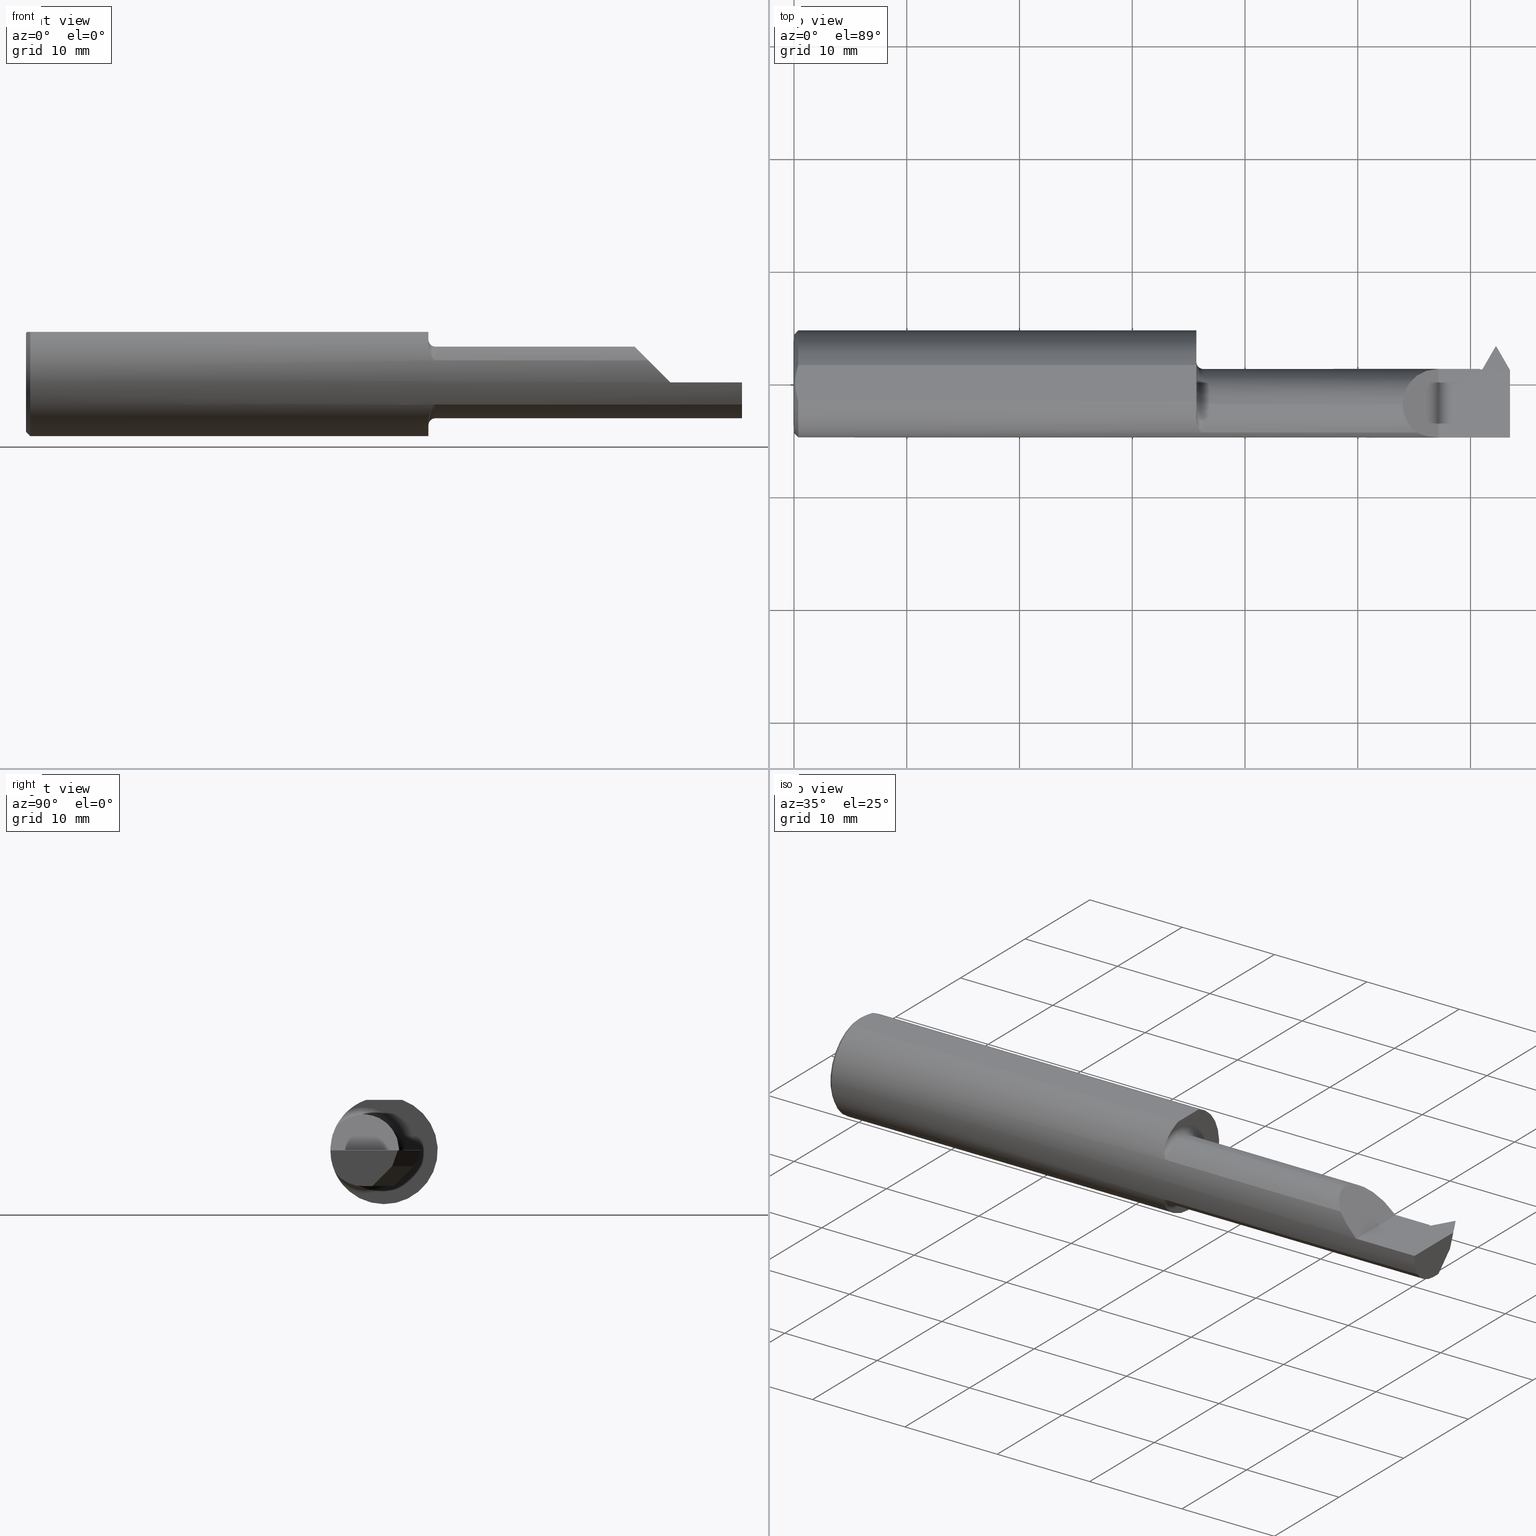
[diagram: canonical four-view strip — front | top / right | iso, engineering-drawing reading convention]
A machine part, canonical four-view strip (front | top / right | iso — engineering-drawing reading convention). The complete STEP part file that produces these views, byte-faithful:
ISO-10303-21;
HEADER;
FILE_DESCRIPTION (( 'STEP AP203' ),
    '1' );
FILE_NAME ('230397-TT3201000.STEP',
    '2025-04-22T22:45:54',
    ( '' ),
    ( '' ),
    'SwSTEP 2.0',
    'SolidWorks 2024',
    '' );
FILE_SCHEMA (( 'CONFIG_CONTROL_DESIGN' ));
ENDSEC;

DATA;
#1 = CARTESIAN_POINT ( 'NONE',  ( 2.408768555666735978, 0.04119893105087686636, -0.05226509597430411408 ) ) ;
#2 = CARTESIAN_POINT ( 'NONE',  ( 1.408207941101452088, -0.1482224317505123901, 0.1148057762150967304 ) ) ;
#3 = ORIENTED_EDGE ( 'NONE', *, *, #427, .T. ) ;
#4 = VECTOR ( 'NONE', #872, 39.37007874015748143 ) ;
#5 = LINE ( 'NONE', #913, #298 ) ;
#6 = CARTESIAN_POINT ( 'NONE',  ( 2.449249114193978727, 0.06222061565550778689, -0.1880081883136840992 ) ) ;
#7 = CARTESIAN_POINT ( 'NONE',  ( 1.422402770576354225, -0.1687580686002391195, 0.08138221229323114314 ) ) ;
#8 = ORIENTED_EDGE ( 'NONE', *, *, #754, .T. ) ;
#9 = DIRECTION ( 'NONE',  ( -1.000000000000000000, 0.000000000000000000, -0.000000000000000000 ) ) ;
#10 = AXIS2_PLACEMENT_3D ( 'NONE', #583, #57, #889 ) ;
#11 = CARTESIAN_POINT ( 'NONE',  ( 2.250000000000000000, 0.000000000000000000, 0.000000000000000000 ) ) ;
#12 = CARTESIAN_POINT ( 'NONE',  ( 2.409054084941633977, 0.04070437983970536661, -0.05500000000000006967 ) ) ;
#13 = EDGE_LOOP ( 'NONE', ( #892, #776, #647 ) ) ;
#14 = CARTESIAN_POINT ( 'NONE',  ( 2.409370448767462314, 0.03851830851078916901, -0.05773402954892806194 ) ) ;
#15 = B_SPLINE_CURVE_WITH_KNOTS ( 'NONE', 3,
 ( #968, #867, #506, #125, #60, #277 ),
 .UNSPECIFIED., .F., .F.,
 ( 4, 2, 4 ),
 ( 0.004260876108247118113, 0.005070351723613903024, 0.005879827338980687934 ),
 .UNSPECIFIED. ) ;
#16 = DATE_AND_TIME ( #696, #789 ) ;
#17 = CARTESIAN_POINT ( 'NONE',  ( 2.418416935535163681, -2.341620387771038647, 0.2831811820837145111 ) ) ;
#18 = CARTESIAN_POINT ( 'NONE',  ( 1.428119196786478584, -0.1707639599170698574, 0.07706940050007768384 ) ) ;
#19 = ORIENTED_EDGE ( 'NONE', *, *, #724, .F. ) ;
#20 = CARTESIAN_POINT ( 'NONE',  ( 2.442122729577442364, 0.09621881406503261791, -0.05987237656432056743 ) ) ;
#21 = AXIS2_PLACEMENT_3D ( 'NONE', #585, #361, #441 ) ;
#22 = APPROVAL_ROLE ( '' ) ;
#23 = CARTESIAN_POINT ( 'NONE',  ( 2.399999999999999911, 0.1306500000000009043, -0.02544119062935262451 ) ) ;
#24 = CARTESIAN_POINT ( 'NONE',  ( 0.01500000000000079568, 0.000000000000000000, 0.000000000000000000 ) ) ;
#25 = ORIENTED_EDGE ( 'NONE', *, *, #627, .F. ) ;
#26 = CARTESIAN_POINT ( 'NONE',  ( 2.390128570000000341, 0.06224597133486981654, -0.1879385241571829013 ) ) ;
#27 = PLANE ( 'NONE',  #288 ) ;
#28 = VECTOR ( 'NONE', #918, 39.37007874015748143 ) ;
#29 = LINE ( 'NONE', #899, #291 ) ;
#30 = ORIENTED_EDGE ( 'NONE', *, *, #719, .F. ) ;
#31 = CARTESIAN_POINT ( 'NONE',  ( 2.409054084941633977, 0.03909855666502076027, -0.05660582317468466906 ) ) ;
#32 = DIRECTION ( 'NONE',  ( -0.01827811026638583719, 0.9998329413882549588, -2.416947091259837578E-16 ) ) ;
#33 = ORIENTED_EDGE ( 'NONE', *, *, #90, .T. ) ;
#34 = FACE_OUTER_BOUND ( 'NONE', #508, .T. ) ;
#35 = APPLICATION_PROTOCOL_DEFINITION ( 'international standard', 'config_control_design', 1994, #684 ) ;
#36 = LINE ( 'NONE', #346, #324 ) ;
#37 = AXIS2_PLACEMENT_3D ( 'NONE', #403, #635, #937 ) ;
#38 = ORIENTED_EDGE ( 'NONE', *, *, #970, .T. ) ;
#39 = CARTESIAN_POINT ( 'NONE',  ( 2.409054084941633977, 0.04070437983970536661, -0.05500000000000006967 ) ) ;
#40 = TOROIDAL_SURFACE ( 'NONE', #372, 0.1499999999999999944, 0.02500000000000000139 ) ;
#41 = CARTESIAN_POINT ( 'NONE',  ( 2.418416935535163681, -2.341620387771038647, 0.2831811820837145111 ) ) ;
#42 = CIRCLE ( 'NONE', #10, 0.1499999999999999944 ) ;
#43 = VERTEX_POINT ( 'NONE', #167 ) ;
#44 = CARTESIAN_POINT ( 'NONE',  ( 0.01500000000000079568, 0.000000000000000000, 0.000000000000000000 ) ) ;
#45 = CC_DESIGN_DATE_AND_TIME_ASSIGNMENT ( #864, #417, ( #753 ) ) ;
#46 = FACE_OUTER_BOUND ( 'NONE', #354, .T. ) ;
#47 = EDGE_CURVE ( 'NONE', #112, #577, #145, .T. ) ;
#48 = EDGE_LOOP ( 'NONE', ( #404, #887, #351 ) ) ;
#49 = VECTOR ( 'NONE', #448, 39.37007874015748143 ) ;
#50 = EDGE_CURVE ( 'NONE', #567, #115, #305, .T. ) ;
#51 = CARTESIAN_POINT ( 'NONE',  ( 1.405000000000000249, 0.06325108694718213631, 0.1763499999999999790 ) ) ;
#52 = CARTESIAN_POINT ( 'NONE',  ( 2.500000000000000000, 0.02848634631988948215, -0.05500000000000006967 ) ) ;
#53 = CARTESIAN_POINT ( 'NONE',  ( 1.429999999999999938, -0.1707639599170698019, -0.07706940050007766996 ) ) ;
#54 = CIRCLE ( 'NONE', #344, 0.1499999999999999944 ) ;
#55 = EDGE_LOOP ( 'NONE', ( #283, #955, #811, #337 ) ) ;
#56 = ORIENTED_EDGE ( 'NONE', *, *, #149, .F. ) ;
#57 = DIRECTION ( 'NONE',  ( -1.000000000000000000, -0.000000000000000000, -0.000000000000000000 ) ) ;
#58 = LINE ( 'NONE', #210, #66 ) ;
#59 = VERTEX_POINT ( 'NONE', #680 ) ;
#60 = CARTESIAN_POINT ( 'NONE',  ( 0.004000000000000399070, 0.01076648422130179264, 0.1763500000000000068 ) ) ;
#61 = DIRECTION ( 'NONE',  ( -1.648285525897217286E-15, -0.7071067811865513475, -0.7071067811865436870 ) ) ;
#62 = ORIENTED_EDGE ( 'NONE', *, *, #962, .T. ) ;
#63 = EDGE_LOOP ( 'NONE', ( #960, #736, #201, #303, #271, #498 ) ) ;
#64 = CYLINDRICAL_SURFACE ( 'NONE', #586, 0.1250000000000000000 ) ;
#65 = ORIENTED_EDGE ( 'NONE', *, *, #93, .F. ) ;
#66 = VECTOR ( 'NONE', #360, 39.37007874015748143 ) ;
#67 = FACE_OUTER_BOUND ( 'NONE', #656, .T. ) ;
#68 = VERTEX_POINT ( 'NONE', #310 ) ;
#69 = EDGE_CURVE ( 'NONE', #659, #863, #81, .T. ) ;
#70 = AXIS2_PLACEMENT_3D ( 'NONE', #309, #142, #223 ) ;
#71 = B_SPLINE_CURVE_WITH_KNOTS ( 'NONE', 3,
 ( #561, #922, #539, #845, #85, #393, #94, #400, #700, #176, #428, #883 ),
 .UNSPECIFIED., .F., .F.,
 ( 4, 2, 2, 2, 2, 4 ),
 ( 0.000000000000000000, 0.001104617015978706868, 0.001656925523968060194, 0.001933079777962732303, 0.002071156904960062828, 0.002209234031957392919 ),
 .UNSPECIFIED. ) ;
#72 = DIRECTION ( 'NONE',  ( 0.1005834662396456747, 0.000000000000000000, -0.9949286237309780123 ) ) ;
#73 = ORIENTED_EDGE ( 'NONE', *, *, #507, .T. ) ;
#74 = EDGE_CURVE ( 'NONE', #907, #659, #316, .T. ) ;
#75 = AXIS2_PLACEMENT_3D ( 'NONE', #666, #967, #281 ) ;
#76 = CARTESIAN_POINT ( 'NONE',  ( 2.458081573593460245, 0.1010911906293531920, -0.05500000000000006273 ) ) ;
#77 = CARTESIAN_POINT ( 'NONE',  ( 2.451000000000000068, 0.1332480762113532613, 0.000000000000000000 ) ) ;
#78 = ORIENTED_EDGE ( 'NONE', *, *, #542, .T. ) ;
#79 = AXIS2_PLACEMENT_3D ( 'NONE', #270, #173, #799 ) ;
#80 = CARTESIAN_POINT ( 'NONE',  ( 2.395000000000000018, 0.05265000000000001623, 0.000000000000000000 ) ) ;
#81 = LINE ( 'NONE', #692, #220 ) ;
#82 =( BOUNDED_CURVE ( )  B_SPLINE_CURVE ( 3, ( #839, #617, #925, #920 ),
 .UNSPECIFIED., .F., .T. ) 
 B_SPLINE_CURVE_WITH_KNOTS ( ( 4, 4 ),
 ( 4.715188984043361842, 6.283185307179586232 ),
 .UNSPECIFIED. ) 
 CURVE ( )  GEOMETRIC_REPRESENTATION_ITEM ( )  RATIONAL_B_SPLINE_CURVE ( ( 1.000000000000000000, 0.8053973591226777362, 0.8053973591226777362, 1.000000000000000000 ) ) 
 REPRESENTATION_ITEM ( '' )  );
#83 = CARTESIAN_POINT ( 'NONE',  ( 1.419265545959849550, -0.1667364282984900026, 0.08548857678050762743 ) ) ;
#84 = VERTEX_POINT ( 'NONE', #1 ) ;
#85 = CARTESIAN_POINT ( 'NONE',  ( 1.413464385422889436, -0.1602677418389839570, -0.09726402398944668237 ) ) ;
#86 = ADVANCED_FACE ( 'NONE', ( #610 ), #755, .T. ) ;
#87 = AXIS2_PLACEMENT_3D ( 'NONE', #568, #268, #197 ) ;
#88 = PERSON_AND_ORGANIZATION_ROLE ( 'design_owner' ) ;
#89 = CARTESIAN_POINT ( 'NONE',  ( 2.500000000000000000, 0.1395529379841212447, -0.1250000000000000278 ) ) ;
#90 = EDGE_CURVE ( 'NONE', #502, #226, #842, .T. ) ;
#91 = DIRECTION ( 'NONE',  ( -1.676041101512849552E-15, 0.7071067811865512365, 0.7071067811865436870 ) ) ;
#92 = ORIENTED_EDGE ( 'NONE', *, *, #785, .T. ) ;
#93 = EDGE_CURVE ( 'NONE', #509, #632, #166, .T. ) ;
#94 = CARTESIAN_POINT ( 'NONE',  ( 1.419299808151414100, -0.1667638676707169920, -0.08543442767820319528 ) ) ;
#95 = DATE_AND_TIME ( #239, #548 ) ;
#96 = CARTESIAN_POINT ( 'NONE',  ( 1.429999999999999938, -0.07234999999999998377, 0.000000000000000000 ) ) ;
#97 = FACE_OUTER_BOUND ( 'NONE', #443, .T. ) ;
#98 = VERTEX_POINT ( 'NONE', #768 ) ;
#99 = CARTESIAN_POINT ( 'NONE',  ( 2.173280599499920918, -0.1707639599170693578, 0.07706940050007844711 ) ) ;
#100 = CLOSED_SHELL ( 'NONE', ( #971, #514, #727, #397, #906, #572, #711, #119, #706, #157, #151, #266, #331, #858, #675, #217, #676, #479, #886, #477, #936, #343, #756, #433, #607, #874, #86, #371 ) ) ;
#101 = PERSON_AND_ORGANIZATION ( #286, #809 ) ;
#102 = DIRECTION ( 'NONE',  ( 0.000000000000000000, 0.000000000000000000, 1.000000000000000000 ) ) ;
#103 = CARTESIAN_POINT ( 'NONE',  ( 1.405000000000000249, -0.07234999999999998377, 0.1250000000000000000 ) ) ;
#104 = ORIENTED_EDGE ( 'NONE', *, *, #891, .F. ) ;
#105 = LINE ( 'NONE', #20, #264 ) ;
#106 = LINE ( 'NONE', #853, #184 ) ;
#107 = CARTESIAN_POINT ( 'NONE',  ( 0.01500000000000079568, 0.06325108694718213631, 0.1763499999999999790 ) ) ;
#108 = VERTEX_POINT ( 'NONE', #914 ) ;
#109 = PLANE ( 'NONE',  #273 ) ;
#110 = CALENDAR_DATE ( 2025, 22, 4 ) ;
#111 = DIRECTION ( 'NONE',  ( 0.000000000000000000, -0.7071067811865437980, 0.7071067811865513475 ) ) ;
#112 = VERTEX_POINT ( 'NONE', #463 ) ;
#113 = CARTESIAN_POINT ( 'NONE',  ( 2.385548931050876842, 0.04119893105087687329, -0.05226509597430407938 ) ) ;
#114 = CARTESIAN_POINT ( 'NONE',  ( 1.405000000000000249, -0.07234999999999996989, -0.1250000000000000000 ) ) ;
#115 = VERTEX_POINT ( 'NONE', #472 ) ;
#116 = CC_DESIGN_PERSON_AND_ORGANIZATION_ASSIGNMENT ( #101, #88, ( #141 ) ) ;
#117 = LINE ( 'NONE', #416, #729 ) ;
#118 = VECTOR ( 'NONE', #708, 39.37007874015748143 ) ;
#119 = ADVANCED_FACE ( 'NONE', ( #67 ), #375, .F. ) ;
#120 = EDGE_CURVE ( 'NONE', #43, #822, #532, .T. ) ;
#121 = ORIENTED_EDGE ( 'NONE', *, *, #970, .F. ) ;
#122 = AXIS2_PLACEMENT_3D ( 'NONE', #836, #462, #620 ) ;
#123 = CARTESIAN_POINT ( 'NONE',  ( 2.395000000000000018, 0.05064999999999998670, 0.000000000000000000 ) ) ;
#124 =( BOUNDED_CURVE ( )  B_SPLINE_CURVE ( 3, ( #869, #411, #187, #99 ),
 .UNSPECIFIED., .F., .F. ) 
 B_SPLINE_CURVE_WITH_KNOTS ( ( 4, 4 ),
 ( 0.000000000000000000, 0.9064365498903661500 ),
 .UNSPECIFIED. ) 
 CURVE ( )  GEOMETRIC_REPRESENTATION_ITEM ( )  RATIONAL_B_SPLINE_CURVE ( ( 1.000000000000000000, 0.9326950686634400967, 0.9326950686634400967, 1.000000000000000000 ) ) 
 REPRESENTATION_ITEM ( '' )  );
#125 = CARTESIAN_POINT ( 'NONE',  ( 0.005015674426658929021, 0.02160712711892616780, 0.1763499999999999790 ) ) ;
#126 = CARTESIAN_POINT ( 'NONE',  ( 2.408768555666735978, 0.04119893105087686636, -0.05226509597430411408 ) ) ;
#127 = ORIENTED_EDGE ( 'NONE', *, *, #507, .F. ) ;
#128 = CONICAL_SURFACE ( 'NONE', #717, 0.1873499999999999888, 0.7853981633974437271 ) ;
#129 = CARTESIAN_POINT ( 'NONE',  ( 2.500000000000000000, 0.02848634631988948215, -0.05500000000000006967 ) ) ;
#130 = EDGE_CURVE ( 'NONE', #221, #98, #661, .T. ) ;
#131 = LINE ( 'NONE', #203, #900 ) ;
#132 = VECTOR ( 'NONE', #677, 39.37007874015748143 ) ;
#133 = ORIENTED_EDGE ( 'NONE', *, *, #691, .F. ) ;
#134 = CARTESIAN_POINT ( 'NONE',  ( 2.250000000000000000, 0.2999999999999999889, -6.429183357567480113E-17 ) ) ;
#135 = DIMENSIONAL_EXPONENTS ( 1.000000000000000000, 0.000000000000000000, 0.000000000000000000, 0.000000000000000000, 0.000000000000000000, 0.000000000000000000, 0.000000000000000000 ) ;
#136 = DIRECTION ( 'NONE',  ( -1.000000000000000000, -0.000000000000000000, -0.000000000000000000 ) ) ;
#137 = CARTESIAN_POINT ( 'NONE',  ( 2.500000000000000000, -0.1873499999999998222, -6.429183357567480113E-17 ) ) ;
#138 = ORIENTED_EDGE ( 'NONE', *, *, #144, .F. ) ;
#139 = AXIS2_PLACEMENT_3D ( 'NONE', #332, #468, #555 ) ;
#140 = DIRECTION ( 'NONE',  ( 1.000000000000000000, -0.000000000000000000, -0.000000000000000000 ) ) ;
#141 = PRODUCT ( '230397-TT3201000', '230397-TT3201000', '', ( #846 ) ) ;
#142 = DIRECTION ( 'NONE',  ( -1.000000000000000000, -0.000000000000000000, -0.000000000000000000 ) ) ;
#143 = ORIENTED_EDGE ( 'NONE', *, *, #796, .T. ) ;
#144 = EDGE_CURVE ( 'NONE', #863, #438, #541, .T. ) ;
#145 = LINE ( 'NONE', #389, #866 ) ;
#146 = VECTOR ( 'NONE', #847, 39.37007874015748143 ) ;
#147 = ORIENTED_EDGE ( 'NONE', *, *, #93, .T. ) ;
#148 = DIRECTION ( 'NONE',  ( -1.000000000000000000, -0.000000000000000000, -0.000000000000000000 ) ) ;
#149 = EDGE_CURVE ( 'NONE', #509, #384, #833, .T. ) ;
#150 = ORIENTED_EDGE ( 'NONE', *, *, #300, .T. ) ;
#151 = ADVANCED_FACE ( 'NONE', ( #982 ), #302, .F. ) ;
#152 = ORIENTED_EDGE ( 'NONE', *, *, #216, .T. ) ;
#153 = CARTESIAN_POINT ( 'NONE',  ( 2.403311978464830023, 0.05064999999999998670, 0.000000000000000000 ) ) ;
#154 = CARTESIAN_POINT ( 'NONE',  ( 1.429999999999999938, -0.07234999999999998377, 0.000000000000000000 ) ) ;
#155 = DIRECTION ( 'NONE',  ( 0.000000000000000000, 4.439252989704427977E-15, -1.000000000000000000 ) ) ;
#156 = ORIENTED_EDGE ( 'NONE', *, *, #90, .F. ) ;
#157 = ADVANCED_FACE ( 'NONE', ( #379 ), #458, .F. ) ;
#158 = VECTOR ( 'NONE', #915, 39.37007874015748143 ) ;
#159 = CARTESIAN_POINT ( 'NONE',  ( 2.391724317005160749, 0.05265000000000001623, -0.01811476426934102713 ) ) ;
#160 = DIRECTION ( 'NONE',  ( 0.000000000000000000, 0.000000000000000000, 1.000000000000000000 ) ) ;
#161 = EDGE_CURVE ( 'NONE', #529, #879, #54, .T. ) ;
#162 = DIRECTION ( 'NONE',  ( 0.000000000000000000, 0.000000000000000000, -1.000000000000000000 ) ) ;
#163 = ORIENTED_EDGE ( 'NONE', *, *, #326, .F. ) ;
#164 = PRODUCT_RELATED_PRODUCT_CATEGORY ( 'detail', '', ( #141 ) ) ;
#165 = DIRECTION ( 'NONE',  ( -5.463634812142763074E-15, -0.9396926207859128688, 0.3420201433256566115 ) ) ;
#166 = CIRCLE ( 'NONE', #832, 0.1250000000000000000 ) ;
#167 = CARTESIAN_POINT ( 'NONE',  ( 2.500000000000000000, 0.04837758664047866336, 0.000000000000000000 ) ) ;
#168 = ORIENTED_EDGE ( 'NONE', *, *, #655, .F. ) ;
#169 = CC_DESIGN_APPROVAL ( #503, ( #753 ) ) ;
#170 = CARTESIAN_POINT ( 'NONE',  ( 0.008774081248144433368, -0.04260406931483737974, 0.1763499999999999790 ) ) ;
#171 = AXIS2_PLACEMENT_3D ( 'NONE', #123, #732, #495 ) ;
#172 = COORDINATED_UNIVERSAL_TIME_OFFSET ( 8, 0, .BEHIND. ) ;
#173 = DIRECTION ( 'NONE',  ( 1.000000000000000000, 0.000000000000000000, 0.000000000000000000 ) ) ;
#174 = CARTESIAN_POINT ( 'NONE',  ( 1.404999999999999583, -0.1287813884456101288, 0.1362691528049925216 ) ) ;
#175 = ORIENTED_EDGE ( 'NONE', *, *, #802, .T. ) ;
#176 = CARTESIAN_POINT ( 'NONE',  ( 1.426412728618680514, -0.1703887611576448136, -0.07790427710188337074 ) ) ;
#177 = PERSON_AND_ORGANIZATION ( #286, #809 ) ;
#178 = DIRECTION ( 'NONE',  ( 0.000000000000000000, 0.000000000000000000, -1.000000000000000000 ) ) ;
#179 = ORIENTED_EDGE ( 'NONE', *, *, #957, .F. ) ;
#180 = CARTESIAN_POINT ( 'NONE',  ( 1.429999999999999938, -0.07234999999999998377, -0.1499999999999999944 ) ) ;
#181 = VECTOR ( 'NONE', #413, 39.37007874015748143 ) ;
#182 = APPROVAL_STATUS ( 'not_yet_approved' ) ;
#183 = CARTESIAN_POINT ( 'NONE',  ( 2.500000000000000000, -0.04151365368011088880, -0.1249999999999999584 ) ) ;
#184 = VECTOR ( 'NONE', #32, 39.37007874015748854 ) ;
#185 = DIRECTION ( 'NONE',  ( -0.1021978390768668865, 0.1770118497048815409, 0.9788883525469466163 ) ) ;
#186 = EDGE_LOOP ( 'NONE', ( #979, #637, #65, #743, #965 ) ) ;
#187 = CARTESIAN_POINT ( 'NONE',  ( 2.142479785539520787, -0.1466433954276125384, 0.1078702144604786056 ) ) ;
#188 = DIRECTION ( 'NONE',  ( 0.000000000000000000, 0.000000000000000000, 1.000000000000000000 ) ) ;
#189 = DIRECTION ( 'NONE',  ( -1.000000000000000000, -0.000000000000000000, -0.000000000000000000 ) ) ;
#190 = ORIENTED_EDGE ( 'NONE', *, *, #687, .T. ) ;
#191 = DIRECTION ( 'NONE',  ( -1.000000000000000000, -0.000000000000000000, -0.000000000000000000 ) ) ;
#192 = CARTESIAN_POINT ( 'NONE',  ( 1.902500000000000302, -0.1707639599170698019, 0.07706940050007766996 ) ) ;
#193 = ORIENTED_EDGE ( 'NONE', *, *, #120, .T. ) ;
#194 = CARTESIAN_POINT ( 'NONE',  ( 1.405000000000000249, -0.07234999999999996989, 0.1499999999999999944 ) ) ;
#195 = EDGE_CURVE ( 'NONE', #323, #571, #609, .T. ) ;
#196 = ORIENTED_EDGE ( 'NONE', *, *, #750, .T. ) ;
#197 = DIRECTION ( 'NONE',  ( 0.000000000000000000, 0.000000000000000000, -1.000000000000000000 ) ) ;
#198 = CARTESIAN_POINT ( 'NONE',  ( 2.417154022199689223, -0.01526611729122294252, -0.1250000000000000000 ) ) ;
#199 = CC_DESIGN_APPROVAL ( #570, ( #374 ) ) ;
#200 = ORIENTED_EDGE ( 'NONE', *, *, #402, .T. ) ;
#201 = ORIENTED_EDGE ( 'NONE', *, *, #69, .F. ) ;
#202 = CARTESIAN_POINT ( 'NONE',  ( 2.250000000000000000, 0.2999999999999999889, 0.0003499999999991848933 ) ) ;
#203 = CARTESIAN_POINT ( 'NONE',  ( 2.451000000000000068, 0.1332480762113532613, 0.000000000000000000 ) ) ;
#204 = ORIENTED_EDGE ( 'NONE', *, *, #750, .F. ) ;
#205 = DIRECTION ( 'NONE',  ( 0.001253963230748645534, -0.3420198744252468948, -0.9396918819881089346 ) ) ;
#206 = DIRECTION ( 'NONE',  ( 1.000000000000000000, 0.000000000000000000, 0.000000000000000000 ) ) ;
#207 = DIRECTION ( 'NONE',  ( 0.000000000000000000, 0.000000000000000000, -1.000000000000000000 ) ) ;
#208 = AXIS2_PLACEMENT_3D ( 'NONE', #89, #924, #224 ) ;
#209 = EDGE_LOOP ( 'NONE', ( #267, #196, #249, #38, #138, #709 ) ) ;
#210 = CARTESIAN_POINT ( 'NONE',  ( 0.01500000000000079568, 2.294375778202566330E-17, 0.1873499999999999888 ) ) ;
#211 = ORIENTED_EDGE ( 'NONE', *, *, #161, .F. ) ;
#212 = EDGE_CURVE ( 'NONE', #705, #523, #450, .T. ) ;
#213 = CC_DESIGN_PERSON_AND_ORGANIZATION_ASSIGNMENT ( #871, #793, ( #753 ) ) ;
#214 = VERTEX_POINT ( 'NONE', #640 ) ;
#215 = ORIENTED_EDGE ( 'NONE', *, *, #976, .T. ) ;
#216 = EDGE_CURVE ( 'NONE', #697, #902, #106, .T. ) ;
#217 = ADVANCED_FACE ( 'NONE', ( #707 ), #27, .F. ) ;
#218 = CARTESIAN_POINT ( 'NONE',  ( 2.500000000000000000, 0.2999999999999999889, -6.429183357567480113E-17 ) ) ;
#219 = DIRECTION ( 'NONE',  ( -0.7745966692414825161, 0.4472135954999573171, -0.4472135954999603147 ) ) ;
#220 = VECTOR ( 'NONE', #537, 39.37007874015748143 ) ;
#221 = VERTEX_POINT ( 'NONE', #335 ) ;
#222 = LINE ( 'NONE', #285, #49 ) ;
#223 = DIRECTION ( 'NONE',  ( 0.000000000000000000, 0.000000000000000000, 1.000000000000000000 ) ) ;
#224 = DIRECTION ( 'NONE',  ( 0.000000000000000000, -1.000000000000000000, 2.417245856451656257E-16 ) ) ;
#225 = CARTESIAN_POINT ( 'NONE',  ( 1.405000000000000249, -0.1232518659295093050, 0.1410992560040422727 ) ) ;
#226 = VERTEX_POINT ( 'NONE', #720 ) ;
#227 = CARTESIAN_POINT ( 'NONE',  ( 1.429999999999999938, -0.07234999999999996989, 0.1499999999999999944 ) ) ;
#228 = CARTESIAN_POINT ( 'NONE',  ( 2.385548931050876842, 0.04119893105087687329, -0.05226509597430407938 ) ) ;
#229 = CARTESIAN_POINT ( 'NONE',  ( 2.395000000000000018, 0.05064999999999998670, 0.000000000000000000 ) ) ;
#230 = CARTESIAN_POINT ( 'NONE',  ( 1.417679829691370852, -0.1652024577544480843, 0.08842811073770914798 ) ) ;
#231 = EDGE_LOOP ( 'NONE', ( #133, #543, #466, #211 ) ) ;
#232 = CARTESIAN_POINT ( 'NONE',  ( 1.405000000000000249, 0.000000000000000000, 0.000000000000000000 ) ) ;
#233 = VECTOR ( 'NONE', #961, 39.37007874015748143 ) ;
#234 = FACE_OUTER_BOUND ( 'NONE', #726, .T. ) ;
#235 = CARTESIAN_POINT ( 'NONE',  ( 2.500000000000000000, -0.07234999999999998377, 0.000000000000000000 ) ) ;
#236 = FACE_OUTER_BOUND ( 'NONE', #55, .T. ) ;
#237 = ORIENTED_EDGE ( 'NONE', *, *, #340, .T. ) ;
#238 = CARTESIAN_POINT ( 'NONE',  ( 2.449500000000000899, 0.1306500000000009321, -6.429183357567480113E-17 ) ) ;
#239 = CALENDAR_DATE ( 2025, 22, 4 ) ;
#240 = CARTESIAN_POINT ( 'NONE',  ( 1.902500000000000302, -0.1707639599170698019, -0.07706940050007766996 ) ) ;
#241 = AXIS2_PLACEMENT_3D ( 'NONE', #584, #409, #511 ) ;
#242 = CARTESIAN_POINT ( 'NONE',  ( 2.443918426406539890, 0.03109119062935251226, -0.1249999999999999584 ) ) ;
#243 = ORIENTED_EDGE ( 'NONE', *, *, #976, .F. ) ;
#244 = CARTESIAN_POINT ( 'NONE',  ( 0.01500000000000079048, -0.06325108694718213631, 0.1763499999999999790 ) ) ;
#245 = CIRCLE ( 'NONE', #377, 0.1873499999999999888 ) ;
#246 = EDGE_CURVE ( 'NONE', #214, #438, #421, .T. ) ;
#247 = DIRECTION ( 'NONE',  ( 0.5000000000000012212, -0.8660254037844377084, 0.000000000000000000 ) ) ;
#248 = CARTESIAN_POINT ( 'NONE',  ( 1.429999999999999938, -0.1707639599170698019, 0.07706940050007766996 ) ) ;
#249 = ORIENTED_EDGE ( 'NONE', *, *, #852, .T. ) ;
#250 = MANIFOLD_SOLID_BREP ( 'Cut-Sweep1', #100 ) ;
#251 = CARTESIAN_POINT ( 'NONE',  ( 1.405000000000000249, -0.1232518659295093050, 0.1410992560040422727 ) ) ;
#252 = B_SPLINE_CURVE_WITH_KNOTS ( 'NONE', 3,
 ( #633, #850, #710, #170, #857, #244 ),
 .UNSPECIFIED., .F., .F.,
 ( 4, 2, 4 ),
 ( 0.005879827338980687934, 0.006688927827499994636, 0.007498028316019300470 ),
 .UNSPECIFIED. ) ;
#253 = COORDINATED_UNIVERSAL_TIME_OFFSET ( 8, 0, .BEHIND. ) ;
#254 = EDGE_CURVE ( 'NONE', #455, #529, #738, .T. ) ;
#255 = CARTESIAN_POINT ( 'NONE',  ( 0.000000000000000000, 0.000000000000000000, -0.1723499999999993371 ) ) ;
#256 = DIRECTION ( 'NONE',  ( 0.5000000000000012212, -0.8660254037844377084, 0.000000000000000000 ) ) ;
#257 = ORIENTED_EDGE ( 'NONE', *, *, #615, .F. ) ;
#258 = AXIS2_PLACEMENT_3D ( 'NONE', #488, #788, #102 ) ;
#259 = PERSON_AND_ORGANIZATION_ROLE ( 'classification_officer' ) ;
#260 = DIRECTION ( 'NONE',  ( 0.5000000000000014433, -0.8660254037844377084, 0.000000000000000000 ) ) ;
#261 = EDGE_LOOP ( 'NONE', ( #381, #781, #313, #490 ) ) ;
#262 = CARTESIAN_POINT ( 'NONE',  ( 2.443918426406540334, 0.1010911906293534557, -0.05499999999999977129 ) ) ;
#263 = CC_DESIGN_SECURITY_CLASSIFICATION ( #807, ( #374 ) ) ;
#264 = VECTOR ( 'NONE', #782, 39.37007874015748143 ) ;
#265 = FACE_OUTER_BOUND ( 'NONE', #280, .T. ) ;
#266 = ADVANCED_FACE ( 'NONE', ( #265 ), #941, .F. ) ;
#267 = ORIENTED_EDGE ( 'NONE', *, *, #294, .F. ) ;
#268 = DIRECTION ( 'NONE',  ( 1.000000000000000000, 0.000000000000000000, 0.000000000000000000 ) ) ;
#269 = EDGE_CURVE ( 'NONE', #384, #747, #818, .T. ) ;
#270 = CARTESIAN_POINT ( 'NONE',  ( 1.429999999999999938, -0.07234999999999998377, 0.000000000000000000 ) ) ;
#271 = ORIENTED_EDGE ( 'NONE', *, *, #757, .F. ) ;
#272 = LINE ( 'NONE', #648, #233 ) ;
#273 = AXIS2_PLACEMENT_3D ( 'NONE', #26, #165, #787 ) ;
#274 = CARTESIAN_POINT ( 'NONE',  ( 1.429999999999999938, -0.07234999999999998377, 0.000000000000000000 ) ) ;
#275 = ORIENTED_EDGE ( 'NONE', *, *, #333, .F. ) ;
#276 = LINE ( 'NONE', #129, #814 ) ;
#277 = CARTESIAN_POINT ( 'NONE',  ( 0.003999999999998503017, 1.478949923165211460E-16, 0.1763499999999999790 ) ) ;
#278 = PLANE ( 'NONE',  #385 ) ;
#279 = ORIENTED_EDGE ( 'NONE', *, *, #678, .T. ) ;
#280 = EDGE_LOOP ( 'NONE', ( #581, #674, #204 ) ) ;
#281 = DIRECTION ( 'NONE',  ( 0.000000000000000000, 0.000000000000000000, -1.000000000000000000 ) ) ;
#282 = DIRECTION ( 'NONE',  ( -1.000000000000000000, -0.000000000000000000, -0.000000000000000000 ) ) ;
#283 = ORIENTED_EDGE ( 'NONE', *, *, #471, .F. ) ;
#284 = ORIENTED_EDGE ( 'NONE', *, *, #860, .T. ) ;
#285 = CARTESIAN_POINT ( 'NONE',  ( 2.421595865921055690, 0.09428629006806291124, -0.1250000000000000278 ) ) ;
#286 = PERSON ( 'UNSPECIFIED', 'UNSPECIFIED', 'UNSPECIFIED', ('UNSPECIFIED'), ('UNSPECIFIED'), ('UNSPECIFIED') ) ;
#287 = PLANE ( 'NONE',  #634 ) ;
#288 = AXIS2_PLACEMENT_3D ( 'NONE', #783, #339, #478 ) ;
#289 = ORIENTED_EDGE ( 'NONE', *, *, #195, .F. ) ;
#290 = CARTESIAN_POINT ( 'NONE',  ( 2.403311978464830023, 0.05064999999999998670, 0.000000000000000000 ) ) ;
#291 = VECTOR ( 'NONE', #185, 39.37007874015748143 ) ;
#292 = CC_DESIGN_PERSON_AND_ORGANIZATION_ASSIGNMENT ( #177, #259, ( #807 ) ) ;
#293 = CARTESIAN_POINT ( 'NONE',  ( 2.403311978464830023, 0.05064999999999998670, 0.000000000000000000 ) ) ;
#294 = EDGE_CURVE ( 'NONE', #577, #665, #36, .T. ) ;
#295 = ORIENTED_EDGE ( 'NONE', *, *, #826, .T. ) ;
#296 = AXIS2_PLACEMENT_3D ( 'NONE', #552, #777, #619 ) ;
#297 = VERTEX_POINT ( 'NONE', #183 ) ;
#298 = VECTOR ( 'NONE', #614, 39.37007874015748854 ) ;
#299 = UNCERTAINTY_MEASURE_WITH_UNIT (LENGTH_MEASURE( 1.000000000000000082E-05 ), #378, 'distance_accuracy_value', 'NONE');
#300 = EDGE_CURVE ( 'NONE', #697, #747, #566, .T. ) ;
#301 = CARTESIAN_POINT ( 'NONE',  ( 2.458081573593460245, 0.03109119062935249492, -0.1249999999999999861 ) ) ;
#302 = PLANE ( 'NONE',  #405 ) ;
#303 = ORIENTED_EDGE ( 'NONE', *, *, #74, .F. ) ;
#304 = LINE ( 'NONE', #218, #28 ) ;
#305 = LINE ( 'NONE', #229, #132 ) ;
#306 = VECTOR ( 'NONE', #396, 39.37007874015748143 ) ;
#307 = DIRECTION ( 'NONE',  ( -0.5000000000000000000, -0.8660254037844385966, 1.952272811260131938E-16 ) ) ;
#308 = EDGE_LOOP ( 'NONE', ( #593, #882, #243, #966 ) ) ;
#309 = CARTESIAN_POINT ( 'NONE',  ( 1.405000000000000249, -0.07234999999999998377, 0.000000000000000000 ) ) ;
#310 = CARTESIAN_POINT ( 'NONE',  ( 2.173280599499920918, -0.1707639599170693578, 0.07706940050007844711 ) ) ;
#311 = LOCAL_TIME ( 15, 45, 54.00000000000000000, #928 ) ;
#312 = CARTESIAN_POINT ( 'NONE',  ( 2.403311978464830023, 0.05064999999999998670, 0.000000000000000000 ) ) ;
#313 = ORIENTED_EDGE ( 'NONE', *, *, #144, .T. ) ;
#314 = VECTOR ( 'NONE', #660, 39.37007874015748143 ) ;
#315 = CARTESIAN_POINT ( 'NONE',  ( 2.500000000000000000, -0.1707639599170698019, -0.07706940050007768384 ) ) ;
#316 = LINE ( 'NONE', #761, #912 ) ;
#317 = DIRECTION ( 'NONE',  ( 0.000000000000000000, 0.000000000000000000, -1.000000000000000000 ) ) ;
#318 = ORIENTED_EDGE ( 'NONE', *, *, #606, .F. ) ;
#319 = CARTESIAN_POINT ( 'NONE',  ( 2.409266663148388332, 0.03871363218546797907, -0.05735894390891729810 ) ) ;
#320 = VECTOR ( 'NONE', #307, 39.37007874015748854 ) ;
#321 = DATE_TIME_ROLE ( 'classification_date' ) ;
#322 = DIRECTION ( 'NONE',  ( 1.000000000000000000, -0.000000000000000000, -0.000000000000000000 ) ) ;
#323 = VERTEX_POINT ( 'NONE', #255 ) ;
#324 = VECTOR ( 'NONE', #779, 39.37007874015748854 ) ;
#325 = PLANE ( 'NONE',  #774 ) ;
#326 = EDGE_CURVE ( 'NONE', #876, #68, #878, .T. ) ;
#327 = PERSON_AND_ORGANIZATION ( #286, #809 ) ;
#328 = DIRECTION ( 'NONE',  ( 0.000000000000000000, 0.000000000000000000, -1.000000000000000000 ) ) ;
#329 = CIRCLE ( 'NONE', #241, 0.1873499999999999888 ) ;
#330 = ORIENTED_EDGE ( 'NONE', *, *, #340, .F. ) ;
#331 = ADVANCED_FACE ( 'NONE', ( #946 ), #493, .F. ) ;
#332 = CARTESIAN_POINT ( 'NONE',  ( 0.000000000000000000, 0.000000000000000000, 0.000000000000000000 ) ) ;
#333 = EDGE_CURVE ( 'NONE', #907, #822, #865, .T. ) ;
#334 = SECURITY_CLASSIFICATION_LEVEL ( 'unclassified' ) ;
#335 = CARTESIAN_POINT ( 'NONE',  ( 2.409054084941633977, 0.03909855666502076027, -0.05660582317468466906 ) ) ;
#336 = CARTESIAN_POINT ( 'NONE',  ( 1.405000000000000249, 0.05265000000000001623, -6.429183357567480113E-17 ) ) ;
#337 = ORIENTED_EDGE ( 'NONE', *, *, #569, .F. ) ;
#338 = DIRECTION ( 'NONE',  ( 1.000000000000000000, 0.000000000000000000, 0.000000000000000000 ) ) ;
#339 = DIRECTION ( 'NONE',  ( -0.000000000000000000, 0.000000000000000000, -1.000000000000000000 ) ) ;
#340 = EDGE_CURVE ( 'NONE', #434, #876, #464, .T. ) ;
#341 = EDGE_LOOP ( 'NONE', ( #682, #563, #951, #816, #73, #415 ) ) ;
#342 = PLANE ( 'NONE',  #171 ) ;
#343 = ADVANCED_FACE ( 'NONE', ( #650 ), #418, .T. ) ;
#344 = AXIS2_PLACEMENT_3D ( 'NONE', #497, #654, #178 ) ;
#345 = DIRECTION ( 'NONE',  ( 1.000000000000000000, 0.000000000000000000, 0.000000000000000000 ) ) ;
#346 = CARTESIAN_POINT ( 'NONE',  ( 2.409054084941633977, 0.04070437983970536661, -0.05500000000000006967 ) ) ;
#347 = ORIENTED_EDGE ( 'NONE', *, *, #575, .F. ) ;
#348 = LINE ( 'NONE', #737, #392 ) ;
#349 = VECTOR ( 'NONE', #499, 39.37007874015748143 ) ;
#350 = CARTESIAN_POINT ( 'NONE',  ( 2.451000000000000068, 0.1133568358907640350, -0.05500000000000006967 ) ) ;
#351 = ORIENTED_EDGE ( 'NONE', *, *, #957, .T. ) ;
#352 = LINE ( 'NONE', #728, #904 ) ;
#353 = DIRECTION ( 'NONE',  ( 0.000000000000000000, 0.000000000000000000, -1.000000000000000000 ) ) ;
#354 = EDGE_LOOP ( 'NONE', ( #279, #840, #786, #447 ) ) ;
#355 = LINE ( 'NONE', #573, #950 ) ;
#356 = DIRECTION ( 'NONE',  ( -0.7071067811865481278, 0.000000000000000000, -0.7071067811865470176 ) ) ;
#357 = ORIENTED_EDGE ( 'NONE', *, *, #627, .T. ) ;
#358 = CARTESIAN_POINT ( 'NONE',  ( 2.500000000000000000, -0.07234999999999999765, -0.1249999999999999861 ) ) ;
#359 = B_SPLINE_CURVE_WITH_KNOTS ( 'NONE', 3,
 ( #248, #18, #932, #380, #7, #83, #230, #636, #681, #2, #855, #623, #174, #225 ),
 .UNSPECIFIED., .F., .F.,
 ( 4, 2, 2, 2, 2, 2, 4 ),
 ( 0.000000000000000000, 0.0001403017184444718668, 0.0002806034368889437336, 0.0005612068737778991767, 0.001122413747555808979, 0.001683620621333718889, 0.002244827495111628799 ),
 .UNSPECIFIED. ) ;
#360 = DIRECTION ( 'NONE',  ( 0.7071067811865507924, 8.659560562354894648E-17, 0.7071067811865443531 ) ) ;
#361 = DIRECTION ( 'NONE',  ( -1.000000000000000000, -0.000000000000000000, -0.000000000000000000 ) ) ;
#362 = ORIENTED_EDGE ( 'NONE', *, *, #549, .F. ) ;
#363 = FACE_OUTER_BOUND ( 'NONE', #943, .T. ) ;
#364 = DIRECTION ( 'NONE',  ( 1.000000000000000000, 0.000000000000000000, 0.000000000000000000 ) ) ;
#365 = CARTESIAN_POINT ( 'NONE',  ( 2.250000000000000000, -0.1873499999999999610, -6.429183357567478880E-17 ) ) ;
#366 = EDGE_LOOP ( 'NONE', ( #56, #588, #480, #215, #284, #163, #765, #168, #33, #92, #834, #357, #127, #801 ) ) ;
#367 = CARTESIAN_POINT ( 'NONE',  ( 1.405000000000000249, -0.07234999999999998377, 0.000000000000000000 ) ) ;
#368 = EDGE_CURVE ( 'NONE', #112, #84, #596, .T. ) ;
#369 = LENGTH_MEASURE_WITH_UNIT ( LENGTH_MEASURE( 0.02539999999999999897 ), #748 );
#370 = ORIENTED_EDGE ( 'NONE', *, *, #905, .F. ) ;
#371 = ADVANCED_FACE ( 'NONE', ( #861 ), #278, .T. ) ;
#372 = AXIS2_PLACEMENT_3D ( 'NONE', #775, #698, #162 ) ;
#373 = APPLICATION_PROTOCOL_DEFINITION ( 'international standard', 'config_control_design', 1994, #923 ) ;
#374 = PRODUCT_DEFINITION_FORMATION_WITH_SPECIFIED_SOURCE ( 'ANY', '', #141, .NOT_KNOWN. ) ;
#375 = PLANE ( 'NONE',  #208 ) ;
#376 = PLANE ( 'NONE',  #461 ) ;
#377 = AXIS2_PLACEMENT_3D ( 'NONE', #11, #824, #457 ) ;
#378 =( CONVERSION_BASED_UNIT ( 'INCH', #369 ) LENGTH_UNIT ( ) NAMED_UNIT ( #135 ) );
#379 = FACE_OUTER_BOUND ( 'NONE', #939, .T. ) ;
#380 = CARTESIAN_POINT ( 'NONE',  ( 1.423558876738254542, -0.1693773766851885687, 0.08007975305238294872 ) ) ;
#381 = ORIENTED_EDGE ( 'NONE', *, *, #533, .T. ) ;
#382 = APPROVAL ( #482, 'UNSPECIFIED' ) ;
#383 = FACE_OUTER_BOUND ( 'NONE', #391, .T. ) ;
#384 = VERTEX_POINT ( 'NONE', #53 ) ;
#385 = AXIS2_PLACEMENT_3D ( 'NONE', #746, #977, #430 ) ;
#386 = LINE ( 'NONE', #780, #431 ) ;
#387 = ORIENTED_EDGE ( 'NONE', *, *, #829, .F. ) ;
#388 = CARTESIAN_POINT ( 'NONE',  ( 2.418197582037931781, -0.07235000000000001152, -0.1250000000000000000 ) ) ;
#389 = CARTESIAN_POINT ( 'NONE',  ( 2.518819254367519633, -0.7177720014826116657, -1.003595231669350607 ) ) ;
#390 = CARTESIAN_POINT ( 'NONE',  ( 2.458081573593460245, 0.1306500000000009876, -0.02544119062935255859 ) ) ;
#391 = EDGE_LOOP ( 'NONE', ( #387, #289, #295, #974, #916 ) ) ;
#392 = VECTOR ( 'NONE', #956, 39.37007874015748143 ) ;
#393 = CARTESIAN_POINT ( 'NONE',  ( 1.417704374933954625, -0.1652286770924342452, -0.08837992419368183306 ) ) ;
#394 =( BOUNDED_CURVE ( )  B_SPLINE_CURVE ( 3, ( #763, #453, #608, #446 ),
 .UNSPECIFIED., .F., .T. ) 
 B_SPLINE_CURVE_WITH_KNOTS ( ( 4, 4 ),
 ( 2.826149962439216790, 3.058127945359532696 ),
 .UNSPECIFIED. ) 
 CURVE ( )  GEOMETRIC_REPRESENTATION_ITEM ( )  RATIONAL_B_SPLINE_CURVE ( ( 1.000000000000000000, 0.9955205433440618146, 0.9955205433440618146, 1.000000000000000000 ) ) 
 REPRESENTATION_ITEM ( '' )  );
#395 = PERSON_AND_ORGANIZATION_ROLE ( 'creator' ) ;
#396 = DIRECTION ( 'NONE',  ( -1.000000000000000000, -0.000000000000000000, -0.000000000000000000 ) ) ;
#397 = ADVANCED_FACE ( 'NONE', ( #734 ), #663, .T. ) ;
#398 = ORIENTED_EDGE ( 'NONE', *, *, #368, .F. ) ;
#400 = CARTESIAN_POINT ( 'NONE',  ( 1.422430508348289546, -0.1687732045416835136, -0.08135065796925473880 ) ) ;
#399 = CC_DESIGN_DATE_AND_TIME_ASSIGNMENT ( #16, #321, ( #807 ) ) ;
#401 = PERSON_AND_ORGANIZATION_ROLE ( 'design_supplier' ) ;
#402 = EDGE_CURVE ( 'NONE', #422, #509, #590, .T. ) ;
#403 = CARTESIAN_POINT ( 'NONE',  ( 1.405000000000000249, 0.2526500000000000412, 0.000000000000000000 ) ) ;
#404 = ORIENTED_EDGE ( 'NONE', *, *, #542, .F. ) ;
#405 = AXIS2_PLACEMENT_3D ( 'NONE', #17, #454, #72 ) ;
#406 = LINE ( 'NONE', #695, #565 ) ;
#407 = PERSON_AND_ORGANIZATION ( #286, #809 ) ;
#408 = DIRECTION ( 'NONE',  ( -1.000000000000000000, -0.000000000000000000, -0.000000000000000000 ) ) ;
#409 = DIRECTION ( 'NONE',  ( 1.000000000000000000, -0.000000000000000000, -0.000000000000000000 ) ) ;
#410 = ORIENTED_EDGE ( 'NONE', *, *, #326, .T. ) ;
#411 = CARTESIAN_POINT ( 'NONE',  ( 2.125349999999999628, -0.1114715001235029451, 0.1250000000000000278 ) ) ;
#412 = PERSON_AND_ORGANIZATION ( #286, #809 ) ;
#413 = DIRECTION ( 'NONE',  ( -1.000000000000000000, 5.814278724007906947E-15, 0.000000000000000000 ) ) ;
#414 = LINE ( 'NONE', #336, #805 ) ;
#415 = ORIENTED_EDGE ( 'NONE', *, *, #549, .T. ) ;
#416 = CARTESIAN_POINT ( 'NONE',  ( 2.518819254367519633, -0.7177720014826116657, -1.003595231669350607 ) ) ;
#417 = DATE_TIME_ROLE ( 'creation_date' ) ;
#418 = PLANE ( 'NONE',  #37 ) ;
#419 = ORIENTED_EDGE ( 'NONE', *, *, #975, .F. ) ;
#420 = CARTESIAN_POINT ( 'NONE',  ( 2.395000000000000018, 0.05265000000000001623, 0.000000000000000000 ) ) ;
#421 = LINE ( 'NONE', #949, #181 ) ;
#422 = VERTEX_POINT ( 'NONE', #137 ) ;
#423 = LINE ( 'NONE', #817, #314 ) ;
#424 = CARTESIAN_POINT ( 'NONE',  ( 2.408970555950634918, 0.04034989926761259338, -0.05410966642080770189 ) ) ;
#425 =( GEOMETRIC_REPRESENTATION_CONTEXT ( 3 ) GLOBAL_UNCERTAINTY_ASSIGNED_CONTEXT ( ( #299 ) ) GLOBAL_UNIT_ASSIGNED_CONTEXT ( ( #378, #597, #603 ) ) REPRESENTATION_CONTEXT ( 'NONE', 'WORKASPACE' ) );
#426 = ORIENTED_EDGE ( 'NONE', *, *, #962, .F. ) ;
#427 = EDGE_CURVE ( 'NONE', #665, #762, #517, .T. ) ;
#428 = CARTESIAN_POINT ( 'NONE',  ( 1.428132574457247284, -0.1707639599170698019, -0.07706940050007762832 ) ) ;
#429 = FACE_OUTER_BOUND ( 'NONE', #911, .T. ) ;
#430 = DIRECTION ( 'NONE',  ( 0.000000000000000000, 0.000000000000000000, -1.000000000000000000 ) ) ;
#431 = VECTOR ( 'NONE', #465, 39.37007874015748143 ) ;
#432 = VERTEX_POINT ( 'NONE', #365 ) ;
#433 = ADVANCED_FACE ( 'NONE', ( #771 ), #109, .F. ) ;
#434 = VERTEX_POINT ( 'NONE', #638 ) ;
#435 = DIRECTION ( 'NONE',  ( 0.000000000000000000, -0.7071067811865497932, -0.7071067811865451302 ) ) ;
#436 = AXIS2_PLACEMENT_3D ( 'NONE', #23, #111, #557 ) ;
#437 = CARTESIAN_POINT ( 'NONE',  ( 2.403311978464830023, 0.05064999999999998670, 0.000000000000000000 ) ) ;
#438 = VERTEX_POINT ( 'NONE', #238 ) ;
#439 = EDGE_CURVE ( 'NONE', #863, #665, #105, .T. ) ;
#440 = DIRECTION ( 'NONE',  ( 0.000000000000000000, 0.000000000000000000, -1.000000000000000000 ) ) ;
#441 = DIRECTION ( 'NONE',  ( 0.000000000000000000, 0.000000000000000000, 1.000000000000000000 ) ) ;
#442 = AXIS2_PLACEMENT_3D ( 'NONE', #180, #643, #491 ) ;
#443 = EDGE_LOOP ( 'NONE', ( #104, #888, #370, #318, #618 ) ) ;
#444 = DIRECTION ( 'NONE',  ( 0.000000000000000000, 0.000000000000000000, 1.000000000000000000 ) ) ;
#445 = EDGE_CURVE ( 'NONE', #671, #68, #124, .T. ) ;
#446 = CARTESIAN_POINT ( 'NONE',  ( 2.413734622005796027, 0.008361908784097661293, -0.09544939905744566355 ) ) ;
#447 = ORIENTED_EDGE ( 'NONE', *, *, #630, .T. ) ;
#448 = DIRECTION ( 'NONE',  ( -0.5000000000000016653, 0.8660254037844377084, -1.952272811260129226E-16 ) ) ;
#449 = EDGE_CURVE ( 'NONE', #762, #947, #406, .T. ) ;
#450 = CIRCLE ( 'NONE', #258, 0.1250000000000000000 ) ;
#451 = ORIENTED_EDGE ( 'NONE', *, *, #500, .F. ) ;
#452 = DIRECTION ( 'NONE',  ( -1.000000000000000000, 0.000000000000000000, 0.000000000000000000 ) ) ;
#453 = CARTESIAN_POINT ( 'NONE',  ( 2.411507999980803341, -0.007106926527362874245, -0.1070616118923673199 ) ) ;
#454 = DIRECTION ( 'NONE',  ( 0.9947640934854952155, 0.01818544582510275842, 0.1005668328631428854 ) ) ;
#455 = VERTEX_POINT ( 'NONE', #251 ) ;
#456 = VECTOR ( 'NONE', #909, 39.37007874015748854 ) ;
#457 = DIRECTION ( 'NONE',  ( 0.000000000000000000, 0.000000000000000000, 1.000000000000000000 ) ) ;
#458 = PLANE ( 'NONE',  #686 ) ;
#459 = DIRECTION ( 'NONE',  ( -1.000000000000000000, -0.000000000000000000, -0.000000000000000000 ) ) ;
#460 = ORIENTED_EDGE ( 'NONE', *, *, #130, .F. ) ;
#461 = AXIS2_PLACEMENT_3D ( 'NONE', #134, #613, #452 ) ;
#462 = DIRECTION ( 'NONE',  ( 1.000000000000000000, -0.000000000000000000, -0.000000000000000000 ) ) ;
#463 = CARTESIAN_POINT ( 'NONE',  ( 2.409370448767462314, 0.03851830851078916901, -0.05773402954892806194 ) ) ;
#464 = CIRCLE ( 'NONE', #881, 0.1250000000000000000 ) ;
#465 = DIRECTION ( 'NONE',  ( -0.000000000000000000, 1.000000000000000000, -0.000000000000000000 ) ) ;
#466 = ORIENTED_EDGE ( 'NONE', *, *, #471, .T. ) ;
#467 = AXIS2_PLACEMENT_3D ( 'NONE', #885, #356, #745 ) ;
#468 = DIRECTION ( 'NONE',  ( 1.000000000000000000, 0.000000000000000000, 0.000000000000000000 ) ) ;
#469 = VECTOR ( 'NONE', #91, 39.37007874015748854 ) ;
#470 = PERSON_AND_ORGANIZATION ( #286, #809 ) ;
#471 = EDGE_CURVE ( 'NONE', #747, #879, #823, .T. ) ;
#472 = CARTESIAN_POINT ( 'NONE',  ( 2.395000000000000018, 0.05064999999999998670, 0.000000000000000000 ) ) ;
#473 = CARTESIAN_POINT ( 'NONE',  ( 1.429999999999999938, -0.07234999999999996989, -0.1250000000000000000 ) ) ;
#474 = ORIENTED_EDGE ( 'NONE', *, *, #870, .F. ) ;
#475 = AXIS2_PLACEMENT_3D ( 'NONE', #44, #880, #813 ) ;
#477 = ADVANCED_FACE ( 'NONE', ( #940 ), #487, .F. ) ;
#476 = DIRECTION ( 'NONE',  ( 0.000000000000000000, 0.000000000000000000, -1.000000000000000000 ) ) ;
#478 = DIRECTION ( 'NONE',  ( -1.000000000000000000, 0.000000000000000000, 0.000000000000000000 ) ) ;
#479 = ADVANCED_FACE ( 'NONE', ( #544 ), #325, .F. ) ;
#480 = ORIENTED_EDGE ( 'NONE', *, *, #615, .T. ) ;
#481 = CARTESIAN_POINT ( 'NONE',  ( 2.250000000000000000, 0.2999999999999999889, -6.429183357567480113E-17 ) ) ;
#482 = APPROVAL_STATUS ( 'not_yet_approved' ) ;
#483 = DIRECTION ( 'NONE',  ( 1.000000000000000000, 0.000000000000000000, 0.000000000000000000 ) ) ;
#484 = DIRECTION ( 'NONE',  ( 0.000000000000000000, 0.000000000000000000, 1.000000000000000000 ) ) ;
#485 = ORIENTED_EDGE ( 'NONE', *, *, #602, .F. ) ;
#486 = VECTOR ( 'NONE', #910, 39.37007874015748143 ) ;
#487 = PLANE ( 'NONE',  #139 ) ;
#488 = CARTESIAN_POINT ( 'NONE',  ( 2.250000000000000000, -0.07234999999999998377, 0.000000000000000000 ) ) ;
#489 = CARTESIAN_POINT ( 'NONE',  ( 2.223443328839086242, -0.1873000608423838198, 0.02690667116091345970 ) ) ;
#490 = ORIENTED_EDGE ( 'NONE', *, *, #246, .F. ) ;
#491 = DIRECTION ( 'NONE',  ( 0.000000000000000000, 0.000000000000000000, -1.000000000000000000 ) ) ;
#492 = DATE_AND_TIME ( #859, #958 ) ;
#493 = PLANE ( 'NONE',  #436 ) ;
#494 = VERTEX_POINT ( 'NONE', #792 ) ;
#495 = DIRECTION ( 'NONE',  ( 0.1779435454738421407, 0.000000000000000000, 0.9840406976462907629 ) ) ;
#496 = AXIS2_PLACEMENT_3D ( 'NONE', #831, #148, #897 ) ;
#497 = CARTESIAN_POINT ( 'NONE',  ( 1.405000000000000249, -0.07234999999999998377, 0.000000000000000000 ) ) ;
#498 = ORIENTED_EDGE ( 'NONE', *, *, #449, .F. ) ;
#499 = DIRECTION ( 'NONE',  ( 0.000000000000000000, -1.000000000000000000, 0.000000000000000000 ) ) ;
#500 = EDGE_CURVE ( 'NONE', #112, #221, #601, .T. ) ;
#501 = AXIS2_PLACEMENT_3D ( 'NONE', #972, #136, #440 ) ;
#502 = VERTEX_POINT ( 'NONE', #690 ) ;
#503 = APPROVAL ( #701, 'UNSPECIFIED' ) ;
#504 = LINE ( 'NONE', #202, #349 ) ;
#505 = EDGE_CURVE ( 'NONE', #108, #226, #252, .T. ) ;
#506 = CARTESIAN_POINT ( 'NONE',  ( 0.008798171893809259708, 0.04269596770163366223, 0.1763499999999999790 ) ) ;
#507 = EDGE_CURVE ( 'NONE', #494, #605, #653, .T. ) ;
#508 = EDGE_LOOP ( 'NONE', ( #919, #599, #795, #426, #200, #147 ) ) ;
#509 = VERTEX_POINT ( 'NONE', #315 ) ;
#510 = DIRECTION ( 'NONE',  ( -0.000000000000000000, 1.000000000000000000, -2.417245856451656750E-16 ) ) ;
#511 = DIRECTION ( 'NONE',  ( 0.000000000000000000, 0.000000000000000000, -1.000000000000000000 ) ) ;
#512 = ORIENTED_EDGE ( 'NONE', *, *, #905, .T. ) ;
#513 = CARTESIAN_POINT ( 'NONE',  ( 2.413734622005796027, 0.008361908784097661293, -0.09544939905744566355 ) ) ;
#514 = ADVANCED_FACE ( 'NONE', ( #944 ), #693, .F. ) ;
#515 = AXIS2_PLACEMENT_3D ( 'NONE', #794, #725, #328 ) ;
#516 = CARTESIAN_POINT ( 'NONE',  ( 2.403311978464830023, 0.05064999999999998670, 0.000000000000000000 ) ) ;
#517 = LINE ( 'NONE', #820, #703 ) ;
#518 = EDGE_CURVE ( 'NONE', #494, #384, #71, .T. ) ;
#519 = ORIENTED_EDGE ( 'NONE', *, *, #47, .T. ) ;
#520 = EDGE_CURVE ( 'NONE', #632, #697, #348, .T. ) ;
#521 = AXIS2_PLACEMENT_3D ( 'NONE', #232, #338, #476 ) ;
#522 = ORIENTED_EDGE ( 'NONE', *, *, #130, .T. ) ;
#523 = VERTEX_POINT ( 'NONE', #893 ) ;
#524 = VERTEX_POINT ( 'NONE', #113 ) ;
#525 = CYLINDRICAL_SURFACE ( 'NONE', #496, 0.1873499999999999888 ) ;
#526 = LINE ( 'NONE', #293, #456 ) ;
#527 = VECTOR ( 'NONE', #528, 39.37007874015748854 ) ;
#528 = DIRECTION ( 'NONE',  ( 0.000000000000000000, -0.3401001459858867815, -0.9403892229818345827 ) ) ;
#529 = VERTEX_POINT ( 'NONE', #194 ) ;
#530 = CARTESIAN_POINT ( 'NONE',  ( 2.418197582037931781, -0.07235000000000001152, -0.1250000000000000000 ) ) ;
#531 = DIRECTION ( 'NONE',  ( 0.000000000000000000, 0.000000000000000000, -1.000000000000000000 ) ) ;
#532 = LINE ( 'NONE', #764, #527 ) ;
#533 = EDGE_CURVE ( 'NONE', #214, #659, #352, .T. ) ;
#534 = ORIENTED_EDGE ( 'NONE', *, *, #678, .F. ) ;
#535 = DIRECTION ( 'NONE',  ( 0.5000000000000002220, 0.8660254037844383745, 0.000000000000000000 ) ) ;
#536 = CARTESIAN_POINT ( 'NONE',  ( 2.388524533471080957, 0.04877309019558891817, -0.03580979902212567262 ) ) ;
#537 = DIRECTION ( 'NONE',  ( -1.000000000000000000, 9.141519842706908668E-15, 9.141519842706812427E-15 ) ) ;
#538 = ORIENTED_EDGE ( 'NONE', *, *, #505, .T. ) ;
#539 = CARTESIAN_POINT ( 'NONE',  ( 1.406555970616604423, -0.1439812988895033674, -0.1207222593517345705 ) ) ;
#540 = APPROVAL_DATE_TIME ( #649, #570 ) ;
#541 = LINE ( 'NONE', #6, #146 ) ;
#542 = EDGE_CURVE ( 'NONE', #902, #551, #117, .T. ) ;
#543 = ORIENTED_EDGE ( 'NONE', *, *, #802, .F. ) ;
#544 = FACE_OUTER_BOUND ( 'NONE', #308, .T. ) ;
#545 = AXIS2_PLACEMENT_3D ( 'NONE', #274, #206, #353 ) ;
#546 = APPROVAL_DATE_TIME ( #95, #382 ) ;
#547 = DIRECTION ( 'NONE',  ( -0.09000871797897343207, 0.6219594709071071259, 0.7778591435708221979 ) ) ;
#548 = LOCAL_TIME ( 15, 45, 54.00000000000000000, #639 ) ;
#549 = EDGE_CURVE ( 'NONE', #605, #502, #355, .T. ) ;
#550 = DIRECTION ( 'NONE',  ( 1.000000000000000000, -0.000000000000000000, -0.000000000000000000 ) ) ;
#551 = VERTEX_POINT ( 'NONE', #513 ) ;
#552 = CARTESIAN_POINT ( 'NONE',  ( 1.429999999999999938, -0.07234999999999998377, 0.000000000000000000 ) ) ;
#553 = CARTESIAN_POINT ( 'NONE',  ( 2.504904134078944633, 0.1367215348535005537, -0.1250000000000000278 ) ) ;
#554 = ORIENTED_EDGE ( 'NONE', *, *, #500, .T. ) ;
#555 = DIRECTION ( 'NONE',  ( 0.000000000000000000, 0.000000000000000000, -1.000000000000000000 ) ) ;
#556 = AXIS2_PLACEMENT_3D ( 'NONE', #227, #595, #444 ) ;
#557 = DIRECTION ( 'NONE',  ( 0.000000000000000000, -0.7071067811865512365, -0.7071067811865436870 ) ) ;
#558 = LINE ( 'NONE', #733, #978 ) ;
#559 = ORIENTED_EDGE ( 'NONE', *, *, #931, .F. ) ;
#560 = AXIS2_PLACEMENT_3D ( 'NONE', #646, #408, #953 ) ;
#561 = CARTESIAN_POINT ( 'NONE',  ( 1.405000000000000249, -0.1232518659295093050, -0.1410992560040422727 ) ) ;
#562 = DIRECTION ( 'NONE',  ( 0.000000000000000000, 0.000000000000000000, -1.000000000000000000 ) ) ;
#563 = ORIENTED_EDGE ( 'NONE', *, *, #254, .T. ) ;
#564 = CARTESIAN_POINT ( 'NONE',  ( 2.125349999999999184, -0.07234999999999998377, 0.1250000000000000000 ) ) ;
#565 = VECTOR ( 'NONE', #626, 39.37007874015748143 ) ;
#566 = LINE ( 'NONE', #114, #767 ) ;
#567 = VERTEX_POINT ( 'NONE', #420 ) ;
#568 = CARTESIAN_POINT ( 'NONE',  ( 2.500000000000000000, 0.000000000000000000, 0.000000000000000000 ) ) ;
#569 = EDGE_CURVE ( 'NONE', #879, #494, #42, .T. ) ;
#570 = APPROVAL ( #182, 'UNSPECIFIED' ) ;
#571 = VERTEX_POINT ( 'NONE', #716 ) ;
#572 = ADVANCED_FACE ( 'NONE', ( #34 ), #652, .T. ) ;
#573 = CARTESIAN_POINT ( 'NONE',  ( 1.405000000000000249, 0.1749999999999999889, 0.1763499999999999790 ) ) ;
#574 = AXIS2_PLACEMENT_3D ( 'NONE', #592, #895, #207 ) ;
#575 = EDGE_CURVE ( 'NONE', #84, #524, #808, .T. ) ;
#576 = CARTESIAN_POINT ( 'NONE',  ( 1.405000000000000249, -0.07234999999999998377, -0.1499999999999999944 ) ) ;
#577 = VERTEX_POINT ( 'NONE', #39 ) ;
#578 = DIRECTION ( 'NONE',  ( -0.09000871797897343207, 0.6219594709071071259, 0.7778591435708221979 ) ) ;
#579 = FACE_OUTER_BOUND ( 'NONE', #983, .T. ) ;
#580 = AXIS2_PLACEMENT_3D ( 'NONE', #154, #685, #531 ) ;
#581 = ORIENTED_EDGE ( 'NONE', *, *, #47, .F. ) ;
#582 = ORIENTED_EDGE ( 'NONE', *, *, #294, .T. ) ;
#583 = CARTESIAN_POINT ( 'NONE',  ( 1.405000000000000249, -0.07234999999999998377, 0.000000000000000000 ) ) ;
#584 = CARTESIAN_POINT ( 'NONE',  ( 0.01500000000000079568, 0.000000000000000000, 0.000000000000000000 ) ) ;
#585 = CARTESIAN_POINT ( 'NONE',  ( 1.405000000000000249, -0.07234999999999998377, 0.000000000000000000 ) ) ;
#586 = AXIS2_PLACEMENT_3D ( 'NONE', #367, #459, #484 ) ;
#587 = ORIENTED_EDGE ( 'NONE', *, *, #901, .F. ) ;
#588 = ORIENTED_EDGE ( 'NONE', *, *, #402, .F. ) ;
#589 = FACE_OUTER_BOUND ( 'NONE', #186, .T. ) ;
#590 = CIRCLE ( 'NONE', #574, 0.1873499999999999888 ) ;
#591 = FACE_OUTER_BOUND ( 'NONE', #806, .T. ) ;
#592 = CARTESIAN_POINT ( 'NONE',  ( 2.500000000000000000, 0.000000000000000000, 0.000000000000000000 ) ) ;
#593 = ORIENTED_EDGE ( 'NONE', *, *, #212, .F. ) ;
#594 = CIRCLE ( 'NONE', #501, 0.1723499999999993371 ) ;
#595 = DIRECTION ( 'NONE',  ( 0.000000000000000000, 1.000000000000000000, -1.224646799147353207E-16 ) ) ;
#596 =( BOUNDED_CURVE ( )  B_SPLINE_CURVE ( 3, ( #673, #741, #424, #126 ),
 .UNSPECIFIED., .F., .T. ) 
 B_SPLINE_CURVE_WITH_KNOTS ( ( 4, 4 ),
 ( 4.411180308844337539, 4.459909643144646552 ),
 .UNSPECIFIED. ) 
 CURVE ( )  GEOMETRIC_REPRESENTATION_ITEM ( )  RATIONAL_B_SPLINE_CURVE ( ( 1.000000000000000000, 0.9998021307870518237, 0.9998021307870518237, 1.000000000000000000 ) ) 
 REPRESENTATION_ITEM ( '' )  );
#597 =( NAMED_UNIT ( * ) PLANE_ANGLE_UNIT ( ) SI_UNIT ( $, .RADIAN. ) );
#598 = CIRCLE ( 'NONE', #475, 0.1873499999999999888 ) ;
#599 = ORIENTED_EDGE ( 'NONE', *, *, #630, .F. ) ;
#600 = ORIENTED_EDGE ( 'NONE', *, *, #754, .F. ) ;
#601 =( BOUNDED_CURVE ( )  B_SPLINE_CURVE ( 3, ( #14, #319, #927, #31 ),
 .UNSPECIFIED., .F., .F. ) 
 B_SPLINE_CURVE_WITH_KNOTS ( ( 4, 4 ),
 ( 3.446885897117472730, 3.457035344740369442 ),
 .UNSPECIFIED. ) 
 CURVE ( )  GEOMETRIC_REPRESENTATION_ITEM ( )  RATIONAL_B_SPLINE_CURVE ( ( 1.000000000000000000, 0.9999914157445015661, 0.9999914157445015661, 1.000000000000000000 ) ) 
 REPRESENTATION_ITEM ( '' )  );
#602 = EDGE_CURVE ( 'NONE', #705, #59, #504, .T. ) ;
#603 =( NAMED_UNIT ( * ) SI_UNIT ( $, .STERADIAN. ) SOLID_ANGLE_UNIT ( ) );
#604 = DIRECTION ( 'NONE',  ( -0.2521791579305383002, 0.6842534882283957121, 0.6842534882283883846 ) ) ;
#605 = VERTEX_POINT ( 'NONE', #51 ) ;
#606 = EDGE_CURVE ( 'NONE', #751, #770, #598, .T. ) ;
#607 = ADVANCED_FACE ( 'NONE', ( #804 ), #342, .F. ) ;
#608 = CARTESIAN_POINT ( 'NONE',  ( 2.413075199203178922, 0.0009645913569521091411, -0.1017045626867887076 ) ) ;
#609 = CIRCLE ( 'NONE', #515, 0.1723499999999993371 ) ;
#610 = FACE_OUTER_BOUND ( 'NONE', #896, .T. ) ;
#611 = LINE ( 'NONE', #312, #158 ) ;
#612 = ORIENTED_EDGE ( 'NONE', *, *, #901, .T. ) ;
#613 = DIRECTION ( 'NONE',  ( -0.000000000000000000, 0.000000000000000000, -1.000000000000000000 ) ) ;
#614 = DIRECTION ( 'NONE',  ( 0.000000000000000000, -0.7071067811865497932, -0.7071067811865451302 ) ) ;
#615 = EDGE_CURVE ( 'NONE', #422, #432, #423, .T. ) ;
#616 = DIRECTION ( 'NONE',  ( -0.8522042425194489290, -0.4920203488231467137, 0.1779435454738421407 ) ) ;
#617 = CARTESIAN_POINT ( 'NONE',  ( 2.176939441571127176, 0.05244493963352191840, 0.07341055842887181382 ) ) ;
#618 = ORIENTED_EDGE ( 'NONE', *, *, #826, .F. ) ;
#619 = DIRECTION ( 'NONE',  ( 0.000000000000000000, 0.000000000000000000, -1.000000000000000000 ) ) ;
#620 = DIRECTION ( 'NONE',  ( 0.000000000000000000, 0.000000000000000000, -1.000000000000000000 ) ) ;
#621 = EDGE_CURVE ( 'NONE', #632, #297, #797, .T. ) ;
#622 = CARTESIAN_POINT ( 'NONE',  ( 2.500000000000000000, -0.06325108694718213631, 0.1763499999999999790 ) ) ;
#623 = CARTESIAN_POINT ( 'NONE',  ( 1.405424272813302400, -0.1340287381043764880, 0.1311054684688080785 ) ) ;
#624 = ORIENTED_EDGE ( 'NONE', *, *, #691, .T. ) ;
#625 = AXIS2_PLACEMENT_3D ( 'NONE', #153, #683, #535 ) ;
#626 = DIRECTION ( 'NONE',  ( 1.000000000000000000, -0.000000000000000000, -0.000000000000000000 ) ) ;
#627 = EDGE_CURVE ( 'NONE', #770, #605, #272, .T. ) ;
#628 = PRODUCT_DEFINITION_SHAPE ( 'NONE', 'NONE',  #753 ) ;
#629 = PERSON_AND_ORGANIZATION ( #286, #809 ) ;
#630 = EDGE_CURVE ( 'NONE', #822, #297, #276, .T. ) ;
#631 = CARTESIAN_POINT ( 'NONE',  ( 2.409054084941633977, -0.07234999999999998377, 0.000000000000000000 ) ) ;
#632 = VERTEX_POINT ( 'NONE', #358 ) ;
#633 = CARTESIAN_POINT ( 'NONE',  ( 0.003999999999998503017, 1.478949923165211460E-16, 0.1763499999999999790 ) ) ;
#634 = AXIS2_PLACEMENT_3D ( 'NONE', #964, #942, #714 ) ;
#635 = DIRECTION ( 'NONE',  ( 1.000000000000000000, 0.000000000000000000, 0.000000000000000000 ) ) ;
#636 = CARTESIAN_POINT ( 'NONE',  ( 1.413471533398396041, -0.1602710687746327634, 0.09725558226055720790 ) ) ;
#637 = ORIENTED_EDGE ( 'NONE', *, *, #520, .F. ) ;
#638 = CARTESIAN_POINT ( 'NONE',  ( 1.429999999999999938, -0.07234999999999998377, 0.1250000000000000000 ) ) ;
#639 = COORDINATED_UNIVERSAL_TIME_OFFSET ( 8, 0, .BEHIND. ) ;
#640 = CARTESIAN_POINT ( 'NONE',  ( 2.452499999999999680, 0.1306500000000009043, 0.000000000000000000 ) ) ;
#641 = CARTESIAN_POINT ( 'NONE',  ( 0.01500000000000079568, 0.000000000000000000, -0.1873499999999999888 ) ) ;
#642 = ORIENTED_EDGE ( 'NONE', *, *, #449, .T. ) ;
#643 = DIRECTION ( 'NONE',  ( 0.000000000000000000, -1.000000000000000000, 0.000000000000000000 ) ) ;
#644 = CIRCLE ( 'NONE', #556, 0.02500000000000000486 ) ;
#645 = APPROVAL_ROLE ( '' ) ;
#646 = CARTESIAN_POINT ( 'NONE',  ( 1.405000000000000249, -0.07234999999999998377, 0.000000000000000000 ) ) ;
#647 = ORIENTED_EDGE ( 'NONE', *, *, #800, .F. ) ;
#648 = CARTESIAN_POINT ( 'NONE',  ( 2.500000000000000000, 0.06325108694718213631, 0.1763499999999999790 ) ) ;
#649 = DATE_AND_TIME ( #110, #873 ) ;
#650 = FACE_OUTER_BOUND ( 'NONE', #341, .T. ) ;
#651 = ORIENTED_EDGE ( 'NONE', *, *, #575, .T. ) ;
#652 = PLANE ( 'NONE',  #87 ) ;
#653 = CIRCLE ( 'NONE', #521, 0.1873499999999999888 ) ;
#654 = DIRECTION ( 'NONE',  ( -1.000000000000000000, -0.000000000000000000, -0.000000000000000000 ) ) ;
#655 = EDGE_CURVE ( 'NONE', #502, #455, #798, .T. ) ;
#656 = EDGE_LOOP ( 'NONE', ( #19, #642, #534, #921, #672, #152 ) ) ;
#657 = CARTESIAN_POINT ( 'NONE',  ( 2.500000000000000000, 0.1395529379841212447, -0.1250000000000000278 ) ) ;
#658 = LINE ( 'NONE', #641, #118 ) ;
#659 = VERTEX_POINT ( 'NONE', #948 ) ;
#660 = DIRECTION ( 'NONE',  ( -1.000000000000000000, -0.000000000000000000, -0.000000000000000000 ) ) ;
#661 = CIRCLE ( 'NONE', #784, 0.1250000000000000000 ) ;
#662 = CARTESIAN_POINT ( 'NONE',  ( 2.250000000000000000, -0.1873496730715054903, 0.0003499999999991848933 ) ) ;
#663 = CYLINDRICAL_SURFACE ( 'NONE', #21, 0.1250000000000000000 ) ;
#664 = ORIENTED_EDGE ( 'NONE', *, *, #687, .F. ) ;
#665 = VERTEX_POINT ( 'NONE', #262 ) ;
#666 = CARTESIAN_POINT ( 'NONE',  ( 1.405000000000000249, 0.000000000000000000, 0.000000000000000000 ) ) ;
#667 = DIRECTION ( 'NONE',  ( 0.000000000000000000, -0.1779435454738421407, -0.9840406976462907629 ) ) ;
#668 = ORIENTED_EDGE ( 'NONE', *, *, #50, .F. ) ;
#669 =( BOUNDED_CURVE ( )  B_SPLINE_CURVE ( 3, ( #388, #827, #759, #766 ),
 .UNSPECIFIED., .F., .T. ) 
 B_SPLINE_CURVE_WITH_KNOTS ( ( 4, 4 ),
 ( 3.320488901919211866, 4.022422357086396616 ),
 .UNSPECIFIED. ) 
 CURVE ( )  GEOMETRIC_REPRESENTATION_ITEM ( )  RATIONAL_B_SPLINE_CURVE ( ( 1.000000000000000000, 0.9593605234527340375, 0.9593605234527340375, 1.000000000000000000 ) ) 
 REPRESENTATION_ITEM ( '' )  );
#670 = PLANE ( 'NONE',  #467 ) ;
#671 = VERTEX_POINT ( 'NONE', #564 ) ;
#672 = ORIENTED_EDGE ( 'NONE', *, *, #520, .T. ) ;
#673 = CARTESIAN_POINT ( 'NONE',  ( 2.409370448767462314, 0.03851830851078916901, -0.05773402954892806194 ) ) ;
#674 = ORIENTED_EDGE ( 'NONE', *, *, #368, .T. ) ;
#675 = ADVANCED_FACE ( 'NONE', ( #877 ), #525, .T. ) ;
#676 = ADVANCED_FACE ( 'NONE', ( #363 ), #376, .F. ) ;
#677 = DIRECTION ( 'NONE',  ( -0.000000000000000000, -1.000000000000000000, -0.000000000000000000 ) ) ;
#678 = EDGE_CURVE ( 'NONE', #297, #947, #222, .T. ) ;
#679 = CARTESIAN_POINT ( 'NONE',  ( 0.000000000000000000, 0.000000000000000000, 0.000000000000000000 ) ) ;
#680 = CARTESIAN_POINT ( 'NONE',  ( 2.250000000000000000, -0.1873496730715054903, 0.0003499999999991848933 ) ) ;
#681 = CARTESIAN_POINT ( 'NONE',  ( 1.411436535702075945, -0.1564726682735308738, 0.1032790376104839730 ) ) ;
#682 = ORIENTED_EDGE ( 'NONE', *, *, #655, .T. ) ;
#683 = DIRECTION ( 'NONE',  ( 0.8522042425194495952, -0.4920203488231457145, 0.1779435454738421407 ) ) ;
#684 = APPLICATION_CONTEXT ( 'configuration controlled 3d designs of mechanical parts and assemblies' ) ;
#685 = DIRECTION ( 'NONE',  ( 1.000000000000000000, 0.000000000000000000, 0.000000000000000000 ) ) ;
#686 = AXIS2_PLACEMENT_3D ( 'NONE', #77, #616, #247 ) ;
#687 = EDGE_CURVE ( 'NONE', #115, #848, #903, .T. ) ;
#688 = DIRECTION ( 'NONE',  ( -0.5000000000000023315, 0.000000000000000000, 0.8660254037844371533 ) ) ;
#689 = EDGE_LOOP ( 'NONE', ( #179, #150, #175, #926, #600, #930, #844, #419, #347, #398, #554, #522, #821 ) ) ;
#690 = CARTESIAN_POINT ( 'NONE',  ( 1.405000000000000249, -0.06325108694718215019, 0.1763499999999999790 ) ) ;
#691 = EDGE_CURVE ( 'NONE', #434, #529, #644, .T. ) ;
#692 = CARTESIAN_POINT ( 'NONE',  ( 2.390128570000002117, 0.1160911906293539547, -0.03999999999999941797 ) ) ;
#693 = TOROIDAL_SURFACE ( 'NONE', #296, 0.1499999999999999944, 0.02500000000000000139 ) ;
#694 = ORIENTED_EDGE ( 'NONE', *, *, #963, .F. ) ;
#695 = CARTESIAN_POINT ( 'NONE',  ( 2.399999999999999911, 0.03109119062935249492, -0.1249999999999999861 ) ) ;
#696 = CALENDAR_DATE ( 2025, 22, 4 ) ;
#697 = VERTEX_POINT ( 'NONE', #530 ) ;
#698 = DIRECTION ( 'NONE',  ( 1.000000000000000000, 0.000000000000000000, 0.000000000000000000 ) ) ;
#699 = ORIENTED_EDGE ( 'NONE', *, *, #254, .F. ) ;
#700 = CARTESIAN_POINT ( 'NONE',  ( 1.423606395404011682, -0.1693970531853373762, -0.08003777040702687862 ) ) ;
#701 = APPROVAL_STATUS ( 'not_yet_approved' ) ;
#702 = DIRECTION ( 'NONE',  ( 0.1005834662396456747, 0.000000000000000000, -0.9949286237309780123 ) ) ;
#703 = VECTOR ( 'NONE', #61, 39.37007874015748143 ) ;
#704 =( BOUNDED_CURVE ( )  B_SPLINE_CURVE ( 3, ( #662, #489, #790, #890 ),
 .UNSPECIFIED., .F., .F. ) 
 B_SPLINE_CURVE_WITH_KNOTS ( ( 4, 4 ),
 ( 4.714257142666966161, 5.136341099405672850 ),
 .UNSPECIFIED. ) 
 CURVE ( )  GEOMETRIC_REPRESENTATION_ITEM ( )  RATIONAL_B_SPLINE_CURVE ( ( 1.000000000000000000, 0.9852087820824323439, 0.9852087820824323439, 1.000000000000000000 ) ) 
 REPRESENTATION_ITEM ( '' )  );
#705 = VERTEX_POINT ( 'NONE', #752 ) ;
#706 = ADVANCED_FACE ( 'NONE', ( #835 ), #917, .F. ) ;
#707 = FACE_OUTER_BOUND ( 'NONE', #933, .T. ) ;
#708 = DIRECTION ( 'NONE',  ( 0.7071067811865507924, 0.000000000000000000, -0.7071067811865443531 ) ) ;
#709 = ORIENTED_EDGE ( 'NONE', *, *, #439, .T. ) ;
#710 = CARTESIAN_POINT ( 'NONE',  ( 0.004991821518933527678, -0.02143118227845419027, 0.1763500000000000068 ) ) ;
#711 = ADVANCED_FACE ( 'NONE', ( #589 ), #64, .T. ) ;
#712 = APPROVAL_ROLE ( '' ) ;
#713 = DIRECTION ( 'NONE',  ( 0.9947640934854952155, 0.01818544582510275842, 0.1005668328631428854 ) ) ;
#714 = DIRECTION ( 'NONE',  ( -0.5000000000000038858, 0.000000000000000000, -0.8660254037844362651 ) ) ;
#715 = EDGE_LOOP ( 'NONE', ( #812, #825 ) ) ;
#716 = CARTESIAN_POINT ( 'NONE',  ( 0.000000000000000000, 2.202527268266510421E-17, 0.1723499999999993371 ) ) ;
#717 = AXIS2_PLACEMENT_3D ( 'NONE', #24, #550, #317 ) ;
#718 = CALENDAR_DATE ( 2025, 22, 4 ) ;
#719 = EDGE_CURVE ( 'NONE', #432, #523, #386, .T. ) ;
#720 = CARTESIAN_POINT ( 'NONE',  ( 0.01500000000000079048, -0.06325108694718213631, 0.1763499999999999790 ) ) ;
#721 = ORIENTED_EDGE ( 'NONE', *, *, #246, .T. ) ;
#722 = AXIS2_PLACEMENT_3D ( 'NONE', #12, #219, #688 ) ;
#723 = CARTESIAN_POINT ( 'NONE',  ( 1.405000000000000249, 0.04119893105087687329, -0.05226509597430406551 ) ) ;
#724 = EDGE_CURVE ( 'NONE', #762, #902, #862, .T. ) ;
#725 = DIRECTION ( 'NONE',  ( -1.000000000000000000, -0.000000000000000000, -0.000000000000000000 ) ) ;
#726 = EDGE_LOOP ( 'NONE', ( #330, #624, #699, #973 ) ) ;
#727 = ADVANCED_FACE ( 'NONE', ( #97 ), #128, .T. ) ;
#728 = CARTESIAN_POINT ( 'NONE',  ( 2.452750694374653317, 0.06227282877551457152, -0.1878647339454661003 ) ) ;
#729 = VECTOR ( 'NONE', #578, 39.37007874015748143 ) ;
#730 = EDGE_CURVE ( 'NONE', #876, #455, #359, .T. ) ;
#731 = ORIENTED_EDGE ( 'NONE', *, *, #860, .F. ) ;
#732 = DIRECTION ( 'NONE',  ( -0.9840406976462907629, 0.000000000000000000, 0.1779435454738421407 ) ) ;
#733 = CARTESIAN_POINT ( 'NONE',  ( 2.395000000000000018, 0.05064999999999998670, 0.000000000000000000 ) ) ;
#734 = FACE_OUTER_BOUND ( 'NONE', #689, .T. ) ;
#735 = ORIENTED_EDGE ( 'NONE', *, *, #533, .F. ) ;
#736 = ORIENTED_EDGE ( 'NONE', *, *, #439, .F. ) ;
#737 = CARTESIAN_POINT ( 'NONE',  ( 2.500000000000000000, -0.07234999999999999765, -0.1249999999999999861 ) ) ;
#738 = CIRCLE ( 'NONE', #560, 0.1499999999999999944 ) ;
#739 = DIRECTION ( 'NONE',  ( 0.1751915364254256202, 0.1751915364254256202, 0.9688218882383889952 ) ) ;
#740 = AXIS2_PLACEMENT_3D ( 'NONE', #41, #713, #702 ) ;
#741 = CARTESIAN_POINT ( 'NONE',  ( 2.409171226690772105, 0.03945618158170156181, -0.05593300506159747110 ) ) ;
#742 = ORIENTED_EDGE ( 'NONE', *, *, #445, .T. ) ;
#743 = ORIENTED_EDGE ( 'NONE', *, *, #149, .T. ) ;
#744 = VECTOR ( 'NONE', #191, 39.37007874015748143 ) ;
#745 = DIRECTION ( 'NONE',  ( -0.7071067811865469066, 0.000000000000000000, 0.7071067811865480168 ) ) ;
#746 = CARTESIAN_POINT ( 'NONE',  ( 2.409054084941633977, 0.1283568358907640483, -0.05500000000000006967 ) ) ;
#747 = VERTEX_POINT ( 'NONE', #473 ) ;
#748 =( LENGTH_UNIT ( ) NAMED_UNIT ( * ) SI_UNIT ( $, .METRE. ) );
#749 = VECTOR ( 'NONE', #140, 39.37007874015748143 ) ;
#750 = EDGE_CURVE ( 'NONE', #577, #84, #611, .T. ) ;
#751 = VERTEX_POINT ( 'NONE', #769 ) ;
#752 = CARTESIAN_POINT ( 'NONE',  ( 2.250000000000000000, 0.05264950999903971612, 0.0003499999999991848933 ) ) ;
#753 = PRODUCT_DEFINITION ( 'UNKNOWN', '', #374, #908 ) ;
#754 = EDGE_CURVE ( 'NONE', #705, #671, #82, .T. ) ;
#755 = PLANE ( 'NONE',  #722 ) ;
#756 = ADVANCED_FACE ( 'NONE', ( #236 ), #40, .F. ) ;
#757 = EDGE_CURVE ( 'NONE', #947, #907, #843, .T. ) ;
#758 = APPROVAL_PERSON_ORGANIZATION ( #629, #382, #22 ) ;
#759 = CARTESIAN_POINT ( 'NONE',  ( 2.416100958887603234, -0.01444220765322596148, -0.1147325352947253380 ) ) ;
#760 = CONICAL_SURFACE ( 'NONE', #122, 0.1873499999999999888, 0.7853981633974437271 ) ;
#761 = CARTESIAN_POINT ( 'NONE',  ( 2.442591915616446840, 0.1431202488164522724, -0.01297094181290138482 ) ) ;
#762 = VERTEX_POINT ( 'NONE', #242 ) ;
#763 = CARTESIAN_POINT ( 'NONE',  ( 2.409054084941633977, -0.01574417682531606411, -0.1114485566650211257 ) ) ;
#764 = CARTESIAN_POINT ( 'NONE',  ( 2.500000000000000000, 0.04278184266129586577, -0.01547243479515399492 ) ) ;
#765 = ORIENTED_EDGE ( 'NONE', *, *, #730, .T. ) ;
#766 = CARTESIAN_POINT ( 'NONE',  ( 2.413734622005796027, 0.008361908784097661293, -0.09544939905744566355 ) ) ;
#767 = VECTOR ( 'NONE', #189, 39.37007874015748143 ) ;
#768 = CARTESIAN_POINT ( 'NONE',  ( 2.409054084941633977, -0.01574417682531606411, -0.1114485566650211257 ) ) ;
#769 = CARTESIAN_POINT ( 'NONE',  ( 0.01500000000000079568, 0.000000000000000000, -0.1873499999999999888 ) ) ;
#770 = VERTEX_POINT ( 'NONE', #107 ) ;
#771 = FACE_OUTER_BOUND ( 'NONE', #261, .T. ) ;
#772 = CC_DESIGN_APPROVAL ( #382, ( #807 ) ) ;
#773 = ORIENTED_EDGE ( 'NONE', *, *, #931, .T. ) ;
#774 = AXIS2_PLACEMENT_3D ( 'NONE', #481, #9, #935 ) ;
#775 = CARTESIAN_POINT ( 'NONE',  ( 1.429999999999999938, -0.07234999999999998377, 0.000000000000000000 ) ) ;
#776 = ORIENTED_EDGE ( 'NONE', *, *, #50, .T. ) ;
#777 = DIRECTION ( 'NONE',  ( 1.000000000000000000, 0.000000000000000000, 0.000000000000000000 ) ) ;
#778 = COORDINATED_UNIVERSAL_TIME_OFFSET ( 8, 0, .BEHIND. ) ;
#779 = DIRECTION ( 'NONE',  ( 0.4999999999999998335, 0.8660254037844385966, 0.000000000000000000 ) ) ;
#780 = CARTESIAN_POINT ( 'NONE',  ( 2.250000000000000000, 0.2999999999999999889, -6.429183357567480113E-17 ) ) ;
#781 = ORIENTED_EDGE ( 'NONE', *, *, #69, .T. ) ;
#782 = DIRECTION ( 'NONE',  ( -0.2521791579305372455, -0.6842534882283959341, -0.6842534882283886066 ) ) ;
#783 = CARTESIAN_POINT ( 'NONE',  ( 0.000000000000000000, 0.1749999999999999889, 0.1763499999999999790 ) ) ;
#784 = AXIS2_PLACEMENT_3D ( 'NONE', #631, #838, #155 ) ;
#785 = EDGE_CURVE ( 'NONE', #226, #751, #329, .T. ) ;
#786 = ORIENTED_EDGE ( 'NONE', *, *, #333, .T. ) ;
#787 = DIRECTION ( 'NONE',  ( 0.000000000000000000, -0.3420201433256565560, -0.9396926207859126468 ) ) ;
#788 = DIRECTION ( 'NONE',  ( -1.000000000000000000, -0.000000000000000000, -0.000000000000000000 ) ) ;
#789 = LOCAL_TIME ( 15, 45, 54.00000000000000000, #172 ) ;
#790 = CARTESIAN_POINT ( 'NONE',  ( 2.197486258657502134, -0.1816884877910424079, 0.05286374134249727241 ) ) ;
#791 = ORIENTED_EDGE ( 'NONE', *, *, #445, .F. ) ;
#792 = CARTESIAN_POINT ( 'NONE',  ( 1.405000000000000249, -0.1232518659295093050, -0.1410992560040422727 ) ) ;
#793 = PERSON_AND_ORGANIZATION_ROLE ( 'creator' ) ;
#794 = CARTESIAN_POINT ( 'NONE',  ( 0.000000000000000000, 0.000000000000000000, 0.000000000000000000 ) ) ;
#795 = ORIENTED_EDGE ( 'NONE', *, *, #120, .F. ) ;
#796 = EDGE_CURVE ( 'NONE', #671, #434, #810, .T. ) ;
#797 = LINE ( 'NONE', #657, #875 ) ;
#798 = CIRCLE ( 'NONE', #75, 0.1873499999999999888 ) ;
#799 = DIRECTION ( 'NONE',  ( 0.000000000000000000, 0.000000000000000000, -1.000000000000000000 ) ) ;
#800 = EDGE_CURVE ( 'NONE', #524, #115, #558, .T. ) ;
#801 = ORIENTED_EDGE ( 'NONE', *, *, #518, .T. ) ;
#802 = EDGE_CURVE ( 'NONE', #747, #434, #849, .T. ) ;
#803 =( BOUNDED_CURVE ( )  B_SPLINE_CURVE ( 3, ( #228, #536, #159, #80 ),
 .UNSPECIFIED., .F., .F. ) 
 B_SPLINE_CURVE_WITH_KNOTS ( ( 4, 4 ),
 ( 1.139420741225435352, 1.570796326794896780 ),
 .UNSPECIFIED. ) 
 CURVE ( )  GEOMETRIC_REPRESENTATION_ITEM ( )  RATIONAL_B_SPLINE_CURVE ( ( 1.000000000000000000, 0.9845529495419454991, 0.9845529495419454991, 1.000000000000000000 ) ) 
 REPRESENTATION_ITEM ( '' )  );
#804 = FACE_OUTER_BOUND ( 'NONE', #13, .T. ) ;
#805 = VECTOR ( 'NONE', #364, 39.37007874015748143 ) ;
#806 = EDGE_LOOP ( 'NONE', ( #791, #143, #237, #410 ) ) ;
#807 = SECURITY_CLASSIFICATION ( '', '', #334 ) ;
#808 = LINE ( 'NONE', #723, #744 ) ;
#809 = ORGANIZATION ( 'UNSPECIFIED', 'UNSPECIFIED', '' ) ;
#810 = LINE ( 'NONE', #103, #884 ) ;
#811 = ORIENTED_EDGE ( 'NONE', *, *, #518, .F. ) ;
#812 = ORIENTED_EDGE ( 'NONE', *, *, #195, .T. ) ;
#813 = DIRECTION ( 'NONE',  ( 0.000000000000000000, 0.000000000000000000, -1.000000000000000000 ) ) ;
#814 = VECTOR ( 'NONE', #435, 39.37007874015748854 ) ;
#815 = DIRECTION ( 'NONE',  ( 0.000000000000000000, -0.9840406976462907629, 0.1779435454738421407 ) ) ;
#816 = ORIENTED_EDGE ( 'NONE', *, *, #569, .T. ) ;
#817 = CARTESIAN_POINT ( 'NONE',  ( 2.500000000000000000, -0.1873499999999999888, -6.429183357567480113E-17 ) ) ;
#818 = CIRCLE ( 'NONE', #79, 0.1250000000000000000 ) ;
#819 = CARTESIAN_POINT ( 'NONE',  ( 2.449446622366127979, 0.1160911906293534274, -0.03999999999999995920 ) ) ;
#820 = CARTESIAN_POINT ( 'NONE',  ( 2.443918426406540334, 0.1306500000000008765, -0.02544119062935267656 ) ) ;
#821 = ORIENTED_EDGE ( 'NONE', *, *, #963, .T. ) ;
#822 = VERTEX_POINT ( 'NONE', #52 ) ;
#823 = CIRCLE ( 'NONE', #442, 0.02500000000000000486 ) ;
#824 = DIRECTION ( 'NONE',  ( -1.000000000000000000, -0.000000000000000000, -0.000000000000000000 ) ) ;
#825 = ORIENTED_EDGE ( 'NONE', *, *, #891, .T. ) ;
#826 = EDGE_CURVE ( 'NONE', #323, #751, #658, .T. ) ;
#827 = CARTESIAN_POINT ( 'NONE',  ( 2.417651630723349765, -0.04248585645573448033, -0.1250000000000000278 ) ) ;
#828 = ORIENTED_EDGE ( 'NONE', *, *, #800, .T. ) ;
#829 = EDGE_CURVE ( 'NONE', #571, #108, #58, .T. ) ;
#830 = ORIENTED_EDGE ( 'NONE', *, *, #74, .T. ) ;
#831 = CARTESIAN_POINT ( 'NONE',  ( 2.500000000000000000, 0.000000000000000000, 0.000000000000000000 ) ) ;
#832 = AXIS2_PLACEMENT_3D ( 'NONE', #235, #322, #160 ) ;
#833 = LINE ( 'NONE', #240, #306 ) ;
#834 = ORIENTED_EDGE ( 'NONE', *, *, #606, .T. ) ;
#835 = FACE_OUTER_BOUND ( 'NONE', #209, .T. ) ;
#836 = CARTESIAN_POINT ( 'NONE',  ( 0.01500000000000079568, 0.000000000000000000, 0.000000000000000000 ) ) ;
#837 = TOROIDAL_SURFACE ( 'NONE', #580, 0.1499999999999999944, 0.02500000000000000139 ) ;
#838 = DIRECTION ( 'NONE',  ( -1.000000000000000000, -0.000000000000000000, -0.000000000000000000 ) ) ;
#839 = CARTESIAN_POINT ( 'NONE',  ( 2.250000000000000000, 0.05264950999903971612, 0.0003499999999991848933 ) ) ;
#840 = ORIENTED_EDGE ( 'NONE', *, *, #757, .T. ) ;
#841 = CYLINDRICAL_SURFACE ( 'NONE', #70, 0.1250000000000000000 ) ;
#842 = LINE ( 'NONE', #622, #486 ) ;
#843 = LINE ( 'NONE', #390, #469 ) ;
#844 = ORIENTED_EDGE ( 'NONE', *, *, #870, .T. ) ;
#845 = CARTESIAN_POINT ( 'NONE',  ( 1.411432066522875450, -0.1564710502669967584, -0.1032857535508501373 ) ) ;
#846 = MECHANICAL_CONTEXT ( 'NONE', #923, 'mechanical' ) ;
#847 = DIRECTION ( 'NONE',  ( 0.001253963230748212938, 0.3420198744252468948, 0.9396918819881089346 ) ) ;
#848 = VERTEX_POINT ( 'NONE', #437 ) ;
#849 = CIRCLE ( 'NONE', #545, 0.1250000000000000000 ) ;
#850 = CARTESIAN_POINT ( 'NONE',  ( 0.004000000000000362640, -0.01076149482173471492, 0.1763499999999999790 ) ) ;
#851 = SHAPE_DEFINITION_REPRESENTATION ( #628, #954 ) ;
#852 = EDGE_CURVE ( 'NONE', #84, #848, #29, .T. ) ;
#853 = CARTESIAN_POINT ( 'NONE',  ( 2.414352373134415419, 0.1379871996461446981, -0.1250000000000000278 ) ) ;
#854 = CC_DESIGN_PERSON_AND_ORGANIZATION_ASSIGNMENT ( #470, #395, ( #374 ) ) ;
#855 = CARTESIAN_POINT ( 'NONE',  ( 1.407031986092416975, -0.1437385609081069104, 0.1203809478627894392 ) ) ;
#856 = EDGE_LOOP ( 'NONE', ( #773, #460 ) ) ;
#858 = ADVANCED_FACE ( 'NONE', ( #579 ), #894, .F. ) ;
#857 = CARTESIAN_POINT ( 'NONE',  ( 0.01157529649258904302, -0.05310709997271137461, 0.1763500000000000068 ) ) ;
#859 = CALENDAR_DATE ( 2025, 22, 4 ) ;
#860 = EDGE_CURVE ( 'NONE', #59, #68, #704, .T. ) ;
#861 = FACE_OUTER_BOUND ( 'NONE', #856, .T. ) ;
#862 = LINE ( 'NONE', #553, #320 ) ;
#863 = VERTEX_POINT ( 'NONE', #819 ) ;
#864 = DATE_AND_TIME ( #718, #311 ) ;
#865 = LINE ( 'NONE', #350, #898 ) ;
#866 = VECTOR ( 'NONE', #547, 39.37007874015748143 ) ;
#867 = CARTESIAN_POINT ( 'NONE',  ( 0.01155577088586097305, 0.05304926503900153634, 0.1763499999999999512 ) ) ;
#868 = ORIENTED_EDGE ( 'NONE', *, *, #852, .F. ) ;
#869 = CARTESIAN_POINT ( 'NONE',  ( 2.125349999999999184, -0.07234999999999998377, 0.1250000000000000000 ) ) ;
#870 = EDGE_CURVE ( 'NONE', #523, #567, #414, .T. ) ;
#871 = PERSON_AND_ORGANIZATION ( #286, #809 ) ;
#872 = DIRECTION ( 'NONE',  ( 1.000000000000000000, 0.000000000000000000, 0.000000000000000000 ) ) ;
#873 = LOCAL_TIME ( 15, 45, 54.00000000000000000, #253 ) ;
#874 = ADVANCED_FACE ( 'NONE', ( #46 ), #287, .T. ) ;
#875 = VECTOR ( 'NONE', #510, 39.37007874015748143 ) ;
#876 = VERTEX_POINT ( 'NONE', #959 ) ;
#877 = FACE_OUTER_BOUND ( 'NONE', #366, .T. ) ;
#878 = LINE ( 'NONE', #192, #4 ) ;
#879 = VERTEX_POINT ( 'NONE', #576 ) ;
#880 = DIRECTION ( 'NONE',  ( 1.000000000000000000, -0.000000000000000000, -0.000000000000000000 ) ) ;
#881 = AXIS2_PLACEMENT_3D ( 'NONE', #96, #483, #562 ) ;
#882 = ORIENTED_EDGE ( 'NONE', *, *, #602, .T. ) ;
#883 = CARTESIAN_POINT ( 'NONE',  ( 1.429999999999999938, -0.1707639599170698019, -0.07706940050007766996 ) ) ;
#884 = VECTOR ( 'NONE', #282, 39.37007874015748143 ) ;
#885 = CARTESIAN_POINT ( 'NONE',  ( 2.073999999999999400, 0.1749999999999999889, 0.1763499999999999790 ) ) ;
#886 = ADVANCED_FACE ( 'NONE', ( #429 ), #670, .F. ) ;
#887 = ORIENTED_EDGE ( 'NONE', *, *, #216, .F. ) ;
#888 = ORIENTED_EDGE ( 'NONE', *, *, #829, .T. ) ;
#889 = DIRECTION ( 'NONE',  ( 0.000000000000000000, 0.000000000000000000, -1.000000000000000000 ) ) ;
#890 = CARTESIAN_POINT ( 'NONE',  ( 2.173280599499920918, -0.1707639599170693578, 0.07706940050007844711 ) ) ;
#891 = EDGE_CURVE ( 'NONE', #571, #323, #594, .T. ) ;
#892 = ORIENTED_EDGE ( 'NONE', *, *, #975, .T. ) ;
#893 = CARTESIAN_POINT ( 'NONE',  ( 2.250000000000000000, 0.05265000000000000235, -6.429183357567478880E-17 ) ) ;
#894 = PLANE ( 'NONE',  #934 ) ;
#895 = DIRECTION ( 'NONE',  ( 1.000000000000000000, 0.000000000000000000, 0.000000000000000000 ) ) ;
#896 = EDGE_LOOP ( 'NONE', ( #519, #582, #3, #969, #78, #694, #559, #451 ) ) ;
#897 = DIRECTION ( 'NONE',  ( 0.000000000000000000, 0.000000000000000000, 1.000000000000000000 ) ) ;
#898 = VECTOR ( 'NONE', #260, 39.37007874015748854 ) ;
#899 = CARTESIAN_POINT ( 'NONE',  ( 2.403311978464830023, 0.05064999999999998670, 0.000000000000000000 ) ) ;
#900 = VECTOR ( 'NONE', #256, 39.37007874015748854 ) ;
#901 = EDGE_CURVE ( 'NONE', #214, #43, #131, .T. ) ;
#902 = VERTEX_POINT ( 'NONE', #198 ) ;
#903 = LINE ( 'NONE', #290, #749 ) ;
#904 = VECTOR ( 'NONE', #205, 39.37007874015748143 ) ;
#905 = EDGE_CURVE ( 'NONE', #770, #108, #15, .T. ) ;
#906 = ADVANCED_FACE ( 'NONE', ( #591 ), #841, .T. ) ;
#907 = VERTEX_POINT ( 'NONE', #76 ) ;
#908 = DESIGN_CONTEXT ( 'detailed design', #684, 'design' ) ;
#909 = DIRECTION ( 'NONE',  ( 0.5000000000000001110, 0.8660254037844384856, 0.000000000000000000 ) ) ;
#910 = DIRECTION ( 'NONE',  ( -1.000000000000000000, -0.000000000000000000, -0.000000000000000000 ) ) ;
#911 = EDGE_LOOP ( 'NONE', ( #485, #8, #742, #731 ) ) ;
#912 = VECTOR ( 'NONE', #604, 39.37007874015748143 ) ;
#913 = CARTESIAN_POINT ( 'NONE',  ( 2.409054084941633977, 0.04070437983970536661, -0.05500000000000006967 ) ) ;
#914 = CARTESIAN_POINT ( 'NONE',  ( 0.003999999999998503017, 1.478949923165211460E-16, 0.1763499999999999790 ) ) ;
#915 = DIRECTION ( 'NONE',  ( -0.1021978390768668865, 0.1770118497048815409, 0.9788883525469466163 ) ) ;
#916 = ORIENTED_EDGE ( 'NONE', *, *, #505, .F. ) ;
#917 = PLANE ( 'NONE',  #625 ) ;
#918 = DIRECTION ( 'NONE',  ( -0.000000000000000000, 1.000000000000000000, -0.000000000000000000 ) ) ;
#919 = ORIENTED_EDGE ( 'NONE', *, *, #621, .T. ) ;
#920 = CARTESIAN_POINT ( 'NONE',  ( 2.125349999999999184, -0.07234999999999998377, 0.1250000000000000000 ) ) ;
#921 = ORIENTED_EDGE ( 'NONE', *, *, #621, .F. ) ;
#922 = CARTESIAN_POINT ( 'NONE',  ( 1.405000000000000471, -0.1343272889970693329, -0.1314247431986991232 ) ) ;
#923 = APPLICATION_CONTEXT ( 'configuration controlled 3d designs of mechanical parts and assemblies' ) ;
#924 = DIRECTION ( 'NONE',  ( -0.000000000000000000, 2.417245856451656257E-16, 1.000000000000000000 ) ) ;
#925 = CARTESIAN_POINT ( 'NONE',  ( 2.125349999999999184, 0.0007108448279458398980, 0.1250000000000000278 ) ) ;
#926 = ORIENTED_EDGE ( 'NONE', *, *, #796, .F. ) ;
#927 = CARTESIAN_POINT ( 'NONE',  ( 2.409161207634521684, 0.03890704989722559154, -0.05698287188920451996 ) ) ;
#928 = COORDINATED_UNIVERSAL_TIME_OFFSET ( 8, 0, .BEHIND. ) ;
#929 = CC_DESIGN_PERSON_AND_ORGANIZATION_ASSIGNMENT ( #407, #401, ( #374 ) ) ;
#930 = ORIENTED_EDGE ( 'NONE', *, *, #212, .T. ) ;
#931 = EDGE_CURVE ( 'NONE', #221, #98, #5, .T. ) ;
#932 = CARTESIAN_POINT ( 'NONE',  ( 1.426406265684706964, -0.1703893073657099244, 0.07790344355110689900 ) ) ;
#933 = EDGE_LOOP ( 'NONE', ( #362, #25, #512, #538, #156 ) ) ;
#934 = AXIS2_PLACEMENT_3D ( 'NONE', #516, #815, #667 ) ;
#935 = DIRECTION ( 'NONE',  ( -0.000000000000000000, 0.000000000000000000, 1.000000000000000000 ) ) ;
#936 = ADVANCED_FACE ( 'NONE', ( #383 ), #760, .T. ) ;
#937 = DIRECTION ( 'NONE',  ( 0.000000000000000000, 0.000000000000000000, -1.000000000000000000 ) ) ;
#938 = APPROVAL_PERSON_ORGANIZATION ( #327, #503, #645 ) ;
#939 = EDGE_LOOP ( 'NONE', ( #275, #830, #735, #612, #193 ) ) ;
#940 = FACE_OUTER_BOUND ( 'NONE', #715, .T. ) ;
#941 = PLANE ( 'NONE',  #740 ) ;
#942 = DIRECTION ( 'NONE',  ( 0.7745966692414811838, 0.4472135954999584828, -0.4472135954999613694 ) ) ;
#943 = EDGE_LOOP ( 'NONE', ( #62, #587, #721, #121, #664, #668, #474, #30, #257 ) ) ;
#944 = FACE_OUTER_BOUND ( 'NONE', #231, .T. ) ;
#945 = APPROVAL_DATE_TIME ( #492, #503 ) ;
#946 = FACE_OUTER_BOUND ( 'NONE', #63, .T. ) ;
#947 = VERTEX_POINT ( 'NONE', #301 ) ;
#948 = CARTESIAN_POINT ( 'NONE',  ( 2.452553377633872156, 0.1160911906293536355, -0.03999999999999962613 ) ) ;
#949 = CARTESIAN_POINT ( 'NONE',  ( 2.249999999999999112, 0.1306500000000020978, -6.429183357567480113E-17 ) ) ;
#950 = VECTOR ( 'NONE', #952, 39.37007874015748143 ) ;
#951 = ORIENTED_EDGE ( 'NONE', *, *, #161, .T. ) ;
#952 = DIRECTION ( 'NONE',  ( 0.000000000000000000, -1.000000000000000000, 0.000000000000000000 ) ) ;
#953 = DIRECTION ( 'NONE',  ( 0.000000000000000000, 0.000000000000000000, -1.000000000000000000 ) ) ;
#954 = ADVANCED_BREP_SHAPE_REPRESENTATION ( '230397-TT3201000', ( #250, #981 ), #425 ) ;
#955 = ORIENTED_EDGE ( 'NONE', *, *, #269, .F. ) ;
#956 = DIRECTION ( 'NONE',  ( -1.000000000000000000, -0.000000000000000000, -0.000000000000000000 ) ) ;
#957 = EDGE_CURVE ( 'NONE', #697, #551, #669, .T. ) ;
#958 = LOCAL_TIME ( 15, 45, 54.00000000000000000, #778 ) ;
#959 = CARTESIAN_POINT ( 'NONE',  ( 1.429999999999999938, -0.1707639599170698019, 0.07706940050007766996 ) ) ;
#960 = ORIENTED_EDGE ( 'NONE', *, *, #427, .F. ) ;
#961 = DIRECTION ( 'NONE',  ( 1.000000000000000000, 0.000000000000000000, 0.000000000000000000 ) ) ;
#962 = EDGE_CURVE ( 'NONE', #422, #43, #304, .T. ) ;
#963 = EDGE_CURVE ( 'NONE', #98, #551, #394, .T. ) ;
#964 = CARTESIAN_POINT ( 'NONE',  ( 2.451000000000000068, 0.1133568358907640350, -0.05500000000000006967 ) ) ;
#965 = ORIENTED_EDGE ( 'NONE', *, *, #269, .T. ) ;
#966 = ORIENTED_EDGE ( 'NONE', *, *, #719, .T. ) ;
#967 = DIRECTION ( 'NONE',  ( 1.000000000000000000, 0.000000000000000000, 0.000000000000000000 ) ) ;
#968 = CARTESIAN_POINT ( 'NONE',  ( 0.01500000000000079568, 0.06325108694718213631, 0.1763499999999999790 ) ) ;
#969 = ORIENTED_EDGE ( 'NONE', *, *, #724, .T. ) ;
#970 = EDGE_CURVE ( 'NONE', #848, #438, #526, .T. ) ;
#971 = ADVANCED_FACE ( 'NONE', ( #234 ), #837, .F. ) ;
#972 = CARTESIAN_POINT ( 'NONE',  ( 0.000000000000000000, 0.000000000000000000, 0.000000000000000000 ) ) ;
#973 = ORIENTED_EDGE ( 'NONE', *, *, #730, .F. ) ;
#974 = ORIENTED_EDGE ( 'NONE', *, *, #785, .F. ) ;
#975 = EDGE_CURVE ( 'NONE', #524, #567, #803, .T. ) ;
#976 = EDGE_CURVE ( 'NONE', #432, #59, #245, .T. ) ;
#977 = DIRECTION ( 'NONE',  ( 1.000000000000000000, 0.000000000000000000, 0.000000000000000000 ) ) ;
#978 = VECTOR ( 'NONE', #739, 39.37007874015748143 ) ;
#979 = ORIENTED_EDGE ( 'NONE', *, *, #300, .F. ) ;
#980 = APPROVAL_PERSON_ORGANIZATION ( #412, #570, #712 ) ;
#981 = AXIS2_PLACEMENT_3D ( 'NONE', #679, #188, #345 ) ;
#982 = FACE_OUTER_BOUND ( 'NONE', #48, .T. ) ;
#983 = EDGE_LOOP ( 'NONE', ( #868, #651, #828, #190 ) ) ;
ENDSEC;
END-ISO-10303-21;
